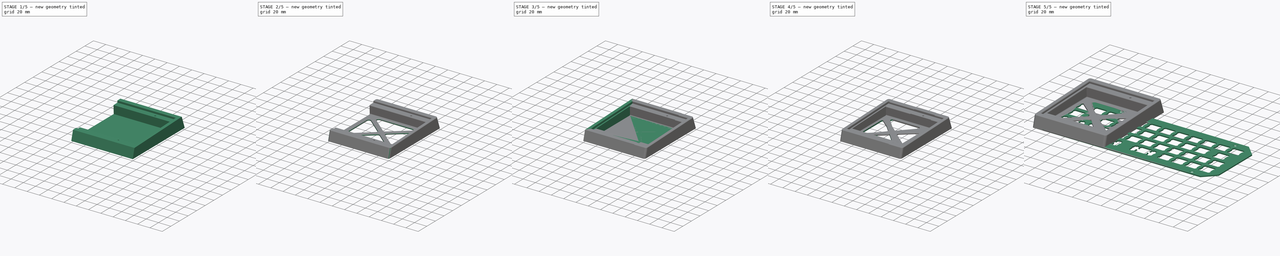
[diagram: build sequence overview — one tinted view per stage of 5, left to right]
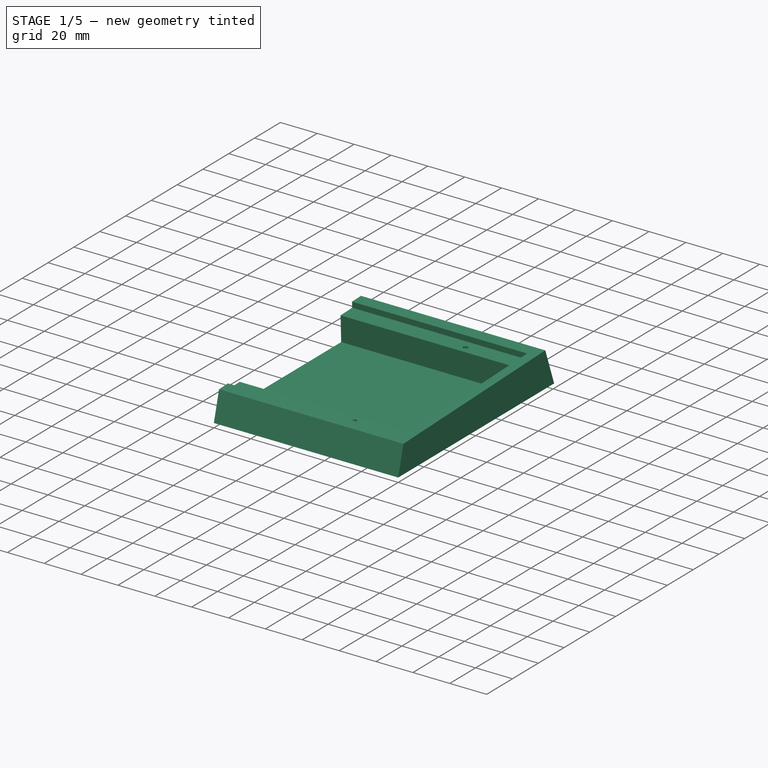
[diagram: stage 1 of 5 — iso view after this stage's code; geometry added in this stage tinted green]
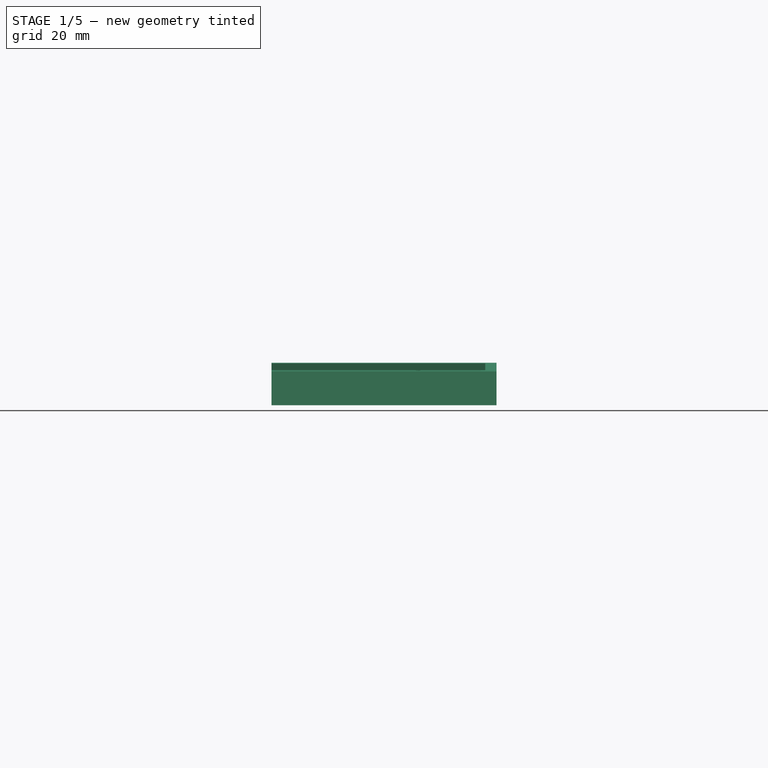
[diagram: stage 1 of 5 — front view after this stage's code; geometry added in this stage tinted green]
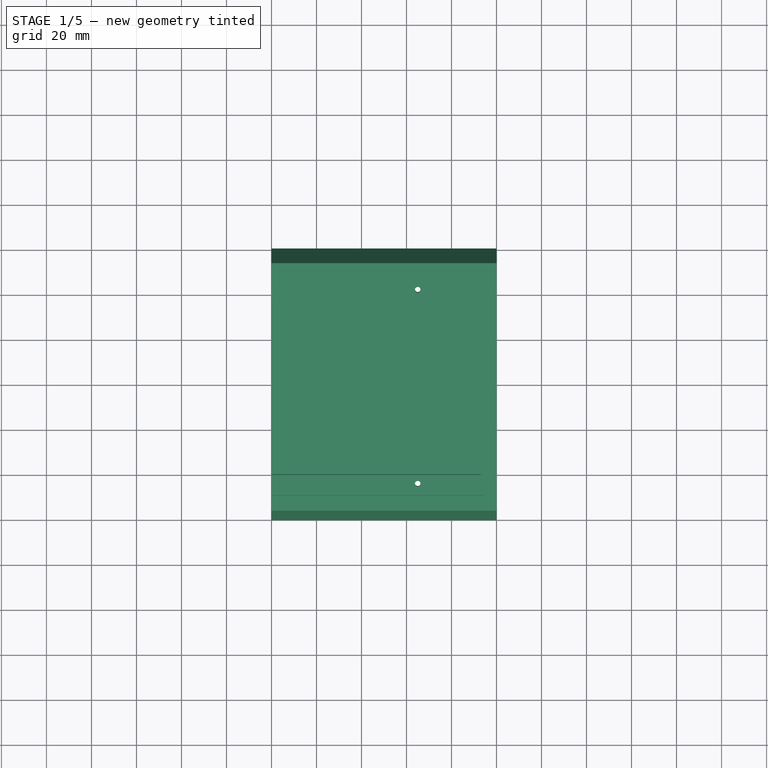
[diagram: stage 1 of 5 — top view after this stage's code; geometry added in this stage tinted green]
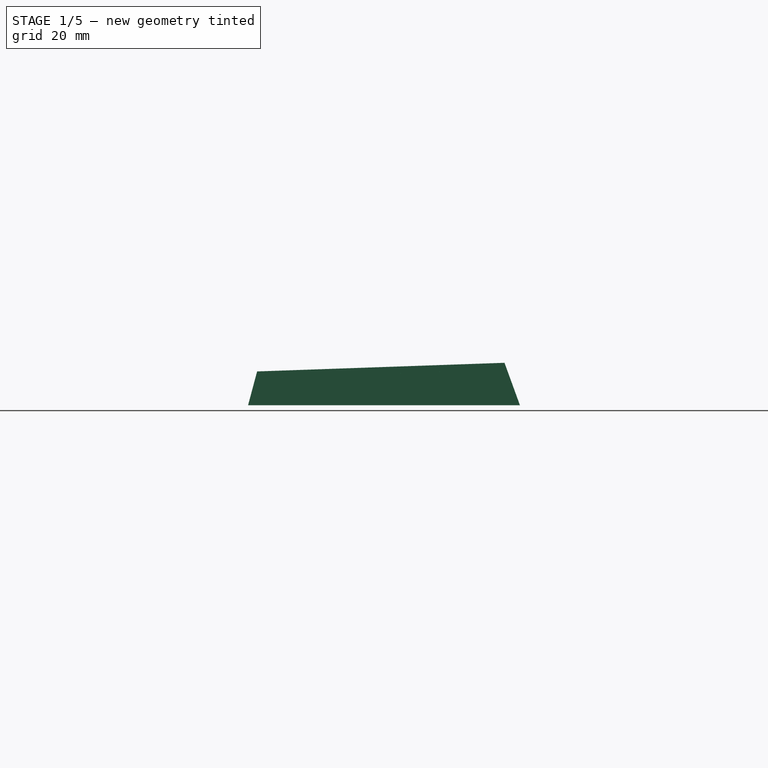
[diagram: stage 1 of 5 — right view after this stage's code; geometry added in this stage tinted green]
FCSTD DOCUMENT  (FreeCAD 0.20R)
Label: bm43
License: All rights reserved
LicenseURL: http://en.wikipedia.org/wiki/All_rights_reserved
objects: Sketcher::SketchObject×13, PartDesign::Pocket×7, PartDesign::Fillet×4, PartDesign::Pad×3, PartDesign::Hole×3, PartDesign::Body×3, PartDesign::Chamfer×1
note: 52 computed .brp shape members not serialized (recipe doc carries the construction recipe); baked Part::Feature solids carry a one-line shape summary decoded from their .brp

FEATURE [PartDesign::Body] Body001  label="Left"
  Group = -> [Sketch002,Pad001,Sketch003,Pocket,Sketch004,Pocket001,Sketch005,Hole001,Sketch006,Sketch007,Pocket002,Pocket003,Fillet,Fillet001]
  Origin = -> Origin001
  Tip = -> Fillet001
FEATURE [Sketcher::SketchObject] Sketch008
  FullyConstrained = true
  MapMode = 5
  Placement = pos=(0,0,0) rot=(0.57735,0.57735,0.57735;2.0944rad)
  sketch-geometry (4):
    g0: LineSegment StartX=0 StartY=0 StartZ=0 EndX=4.01924 EndY=15 EndZ=0
    g1: LineSegment StartX=4.01924 StartY=15 StartZ=0 EndX=113.952 EndY=18.8389 EndZ=0
    g2: LineSegment StartX=113.952 StartY=18.8389 StartZ=0 EndX=120.809 EndY=0 EndZ=0
    g3: LineSegment StartX=120.809 StartY=0 StartZ=0 EndX=0 EndY=0 EndZ=0
  constraints (11):
    c: Coincident(g-1,g0)
    c: Coincident(g0,g1)
    c: Coincident(g1,g2)
    c: PointOnObject(g2,g-1)
    c: Coincident(g2,g3)
    c: Coincident(g3,g0)
    c: Angle(g-1,g1) = 0.0349066
    c: DistanceY(g0,g0) = 15
    c: Angle(g3,g0) = 1.309
    c: Distance(g1) = 110
    c: Angle(g2,g3) = 1.22173
FEATURE [PartDesign::Pad] Pad002
  Direction = (1,-2e-16,3e-16)
  Length = 100
  Length2 = 10
  Placement = pos=(0,0,0) rot=(0.57735,0.57735,0.57735;2.0944rad)
  Profile = -> Sketch008
  ReferenceAxis = -> Sketch008 [N_Axis]
  Type = 0
FEATURE [Sketcher::SketchObject] Sketch009
  ExternalGeometry = -> [Pad002]
  FullyConstrained = true
  MapMode = 5
  Placement = pos=(-2.6e-15,-0.518278,14.8415) rot=(0.01745,0.01745,-0.999695;1.5711rad)
  Support = -> [Pad002]
  sketch-geometry (6):
    g0: LineSegment StartX=-107.64 StartY=95 StartZ=0 EndX=-11.4403 EndY=95 EndZ=0
    g1: LineSegment StartX=-107.64 StartY=95 StartZ=0 EndX=-114.54 EndY=95 EndZ=0
    g2: LineSegment StartX=-11.4403 StartY=95 StartZ=0 EndX=-4.54028 EndY=95 EndZ=0
    g3: LineSegment StartX=-107.64 StartY=95 StartZ=0 EndX=-107.64 EndY=0 EndZ=0
    g4: LineSegment StartX=-11.4403 StartY=95 StartZ=0 EndX=-11.4403 EndY=0 EndZ=0
    g5: LineSegment StartX=-11.4403 StartY=0 StartZ=0 EndX=-107.64 EndY=0 EndZ=0
  constraints (18):
    c: Horizontal(g0)
    c: DistanceX(g0,g0) = 96.2
    c: DistanceY(g0,g-3) = 5
    c: Coincident(g1,g0)
    c: PointOnObject(g1,g-4)
    c: Horizontal(g1)
    c: Coincident(g2,g0)
    c: PointOnObject(g2,g-3)
    c: Horizontal(g2)
    c: Equal(g2,g1)
    c: Coincident(g3,g0)
    c: PointOnObject(g3,g-1)
    c: Vertical(g3)
    c: Coincident(g4,g0)
    c: PointOnObject(g4,g-1)
    c: Vertical(g4)
    c: Coincident(g5,g4)
    c: Coincident(g5,g3)
FEATURE [PartDesign::Pocket] Pocket004
  BaseFeature = -> Pad002
  Direction = (2e-16,0.0348995,-0.999391)
  Length = 3
  Length2 = 5
  Placement = pos=(0,0,0) rot=(0.57735,0.57735,0.57735;2.0944rad)
  Profile = -> Sketch009
  ReferenceAxis = -> Sketch009 [N_Axis]
  Type = 0
FEATURE [Sketcher::SketchObject] Sketch010
  ExternalGeometry = -> [Pocket004]
  FullyConstrained = true
  MapMode = 5
  Placement = pos=(-2e-15,-0.41358,11.8434) rot=(0.01745,0.01745,-0.999695;1.5711rad)
  Support = -> [Pocket004]
  sketch-geometry (5):
    g0: LineSegment StartX=-98.6403 StartY=93 StartZ=0 EndX=-20.4403 EndY=93 EndZ=0
    g1: LineSegment StartX=-20.4403 StartY=93 StartZ=0 EndX=-20.4403 EndY=-1.42e-14 EndZ=0
    g2: LineSegment StartX=-20.4403 StartY=-1.42e-14 StartZ=0 EndX=-98.6403 EndY=-1.42e-14 EndZ=0
    g3: LineSegment StartX=-98.6403 StartY=-1.42e-14 StartZ=0 EndX=-98.6403 EndY=93 EndZ=0
    g4: LineSegment StartX=-11.4403 StartY=0 StartZ=0 EndX=-107.64 EndY=-1.42e-14 EndZ=0
  constraints (14):
    c: Coincident(g0,g1)
    c: Coincident(g1,g2)
    c: Coincident(g2,g3)
    c: Coincident(g3,g0)
    c: Horizontal(g0)
    c: Horizontal(g2)
    c: Vertical(g1)
    c: Vertical(g3)
    c: Coincident(g4,g-3)
    c: Coincident(g-4,g4)
    c: PointOnObject(g2,g4)
    c: DistanceY(g0,g-5) = 2
    c: DistanceX(g-5,g0) = 9
    c: DistanceX(g0,g-5) = 9
FEATURE [PartDesign::Pocket] Pocket005
  BaseFeature = -> Pocket004
  Direction = (2e-16,0.0348995,-0.999391)
  Length = 0
  Length2 = 5
  Offset = -2
  Placement = pos=(0,0,0) rot=(0.57735,0.57735,0.57735;2.0944rad)
  Profile = -> Sketch010
  ReferenceAxis = -> Sketch010 [N_Axis]
  Type = 3
  UpToFace = -> Pocket004 [Face2]
FEATURE [Sketcher::SketchObject] Sketch011
  ExternalGeometry = -> [Pocket005]
  FullyConstrained = true
  MapMode = 5
  Placement = pos=(-2e-15,-0.41358,11.8434) rot=(0.01745,0.01745,-0.999695;1.5711rad)
  Support = -> [Pocket005]
  sketch-geometry (2):
    g0: Circle CenterX=-102.64 CenterY=65 CenterZ=0 NormalX=0 NormalY=0 NormalZ=1 AngleXU=0 Radius=1.5
    g1: Circle CenterX=-16.4403 CenterY=65 CenterZ=0 NormalX=0 NormalY=0 NormalZ=1 AngleXU=0 Radius=1.5
  constraints (6):
    c: Horizontal(g1,g0)
    c: DistanceY(g0,g-3) = 30
    c: DistanceX(g-3,g0) = 5
    c: DistanceX(g1,g-4) = 5
    c: Equal(g0,g1)
    c: Diameter(g1) = 3
FEATURE [PartDesign::Hole] Hole002
  BaseFeature = -> Pocket005
  CustomThreadClearance = 0
  Depth = 25
  DepthType = 0
  Diameter = 2.5
  DrillForDepth = false
  DrillPoint = 1
  DrillPointAngle = 118
  HoleCutCountersinkAngle = 90
  HoleCutCustomValues = false
  HoleCutDepth = 0
  HoleCutDiameter = 6.1
  HoleCutType = 0
  ModelThread = false
  Placement = pos=(0,0,0) rot=(0.57735,0.57735,0.57735;2.0944rad)
  Profile = -> Sketch011
  Tapered = false
  TaperedAngle = 90
  ThreadClass = 0
  ThreadDepth = 25
  ThreadDepthType = 0
  ThreadDirection = 0
  ThreadFit = 0
  ThreadSize = 9
  ThreadType = 1
  Threaded = true
  UseCustomThreadClearance = false
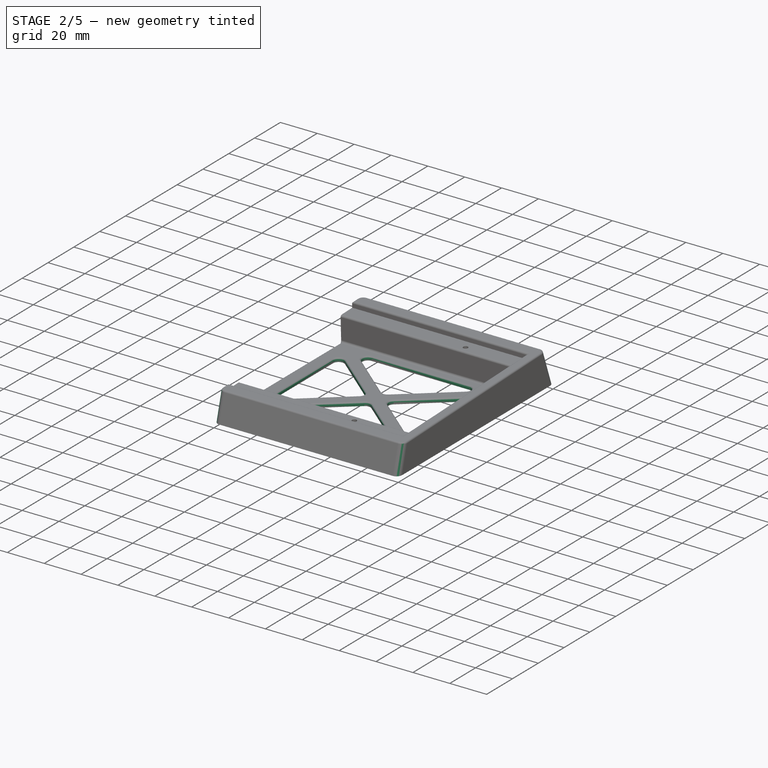
[diagram: stage 2 of 5 — iso view after this stage's code; geometry added in this stage tinted green]
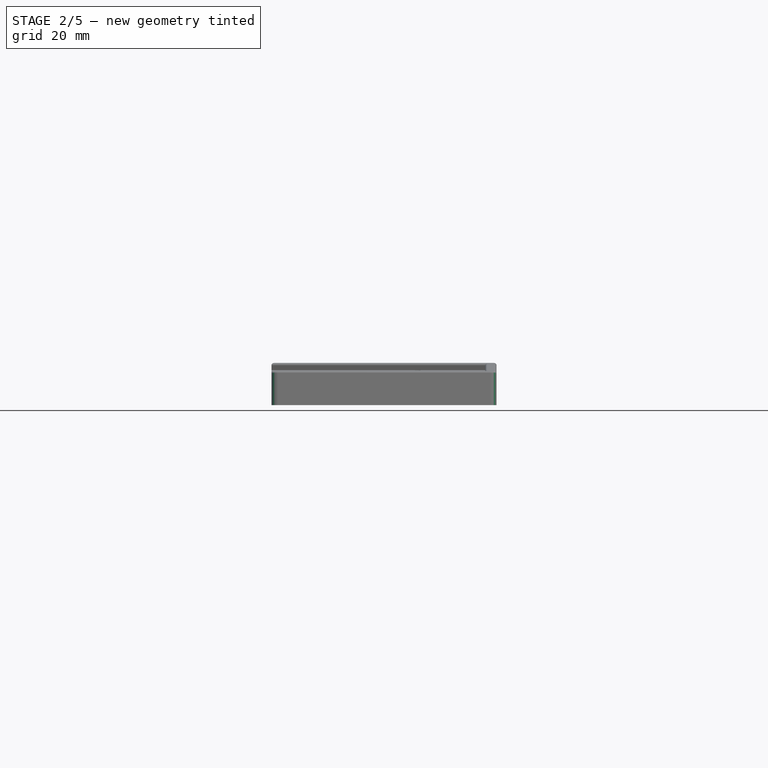
[diagram: stage 2 of 5 — front view after this stage's code; geometry added in this stage tinted green]
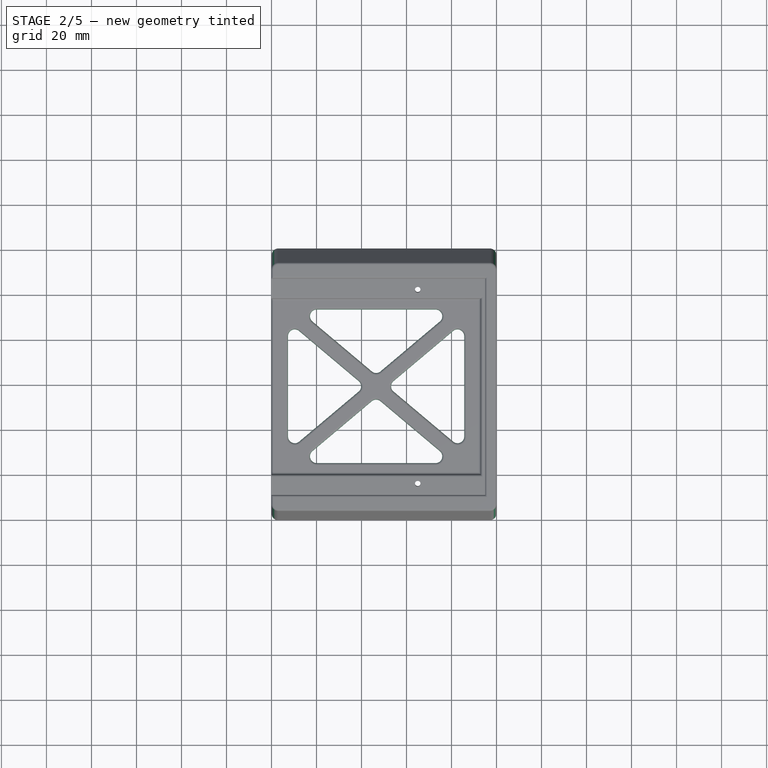
[diagram: stage 2 of 5 — top view after this stage's code; geometry added in this stage tinted green]
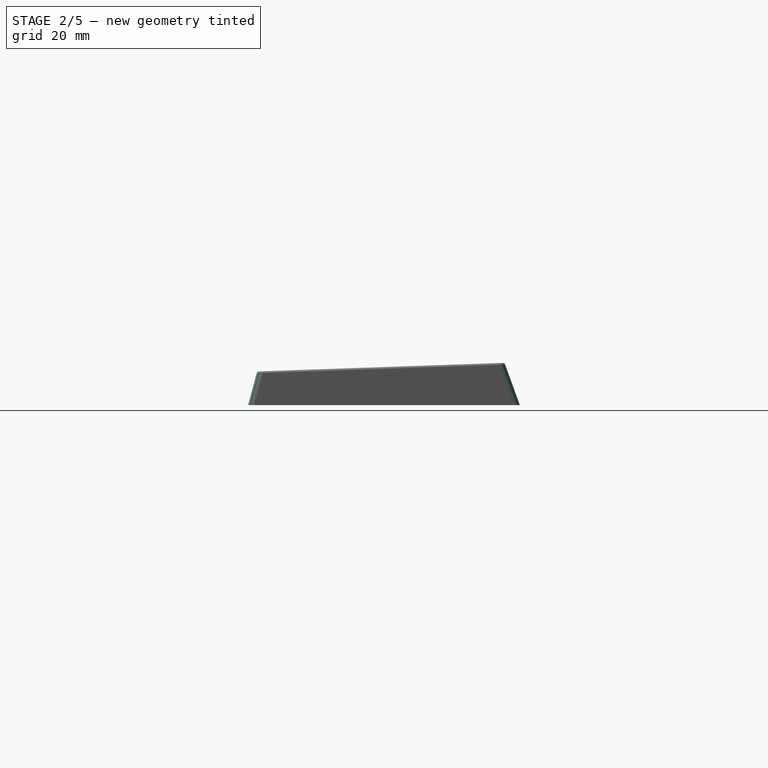
[diagram: stage 2 of 5 — right view after this stage's code; geometry added in this stage tinted green]
FEATURE [Sketcher::SketchObject] Sketch012
  ExternalGeometry = -> [Hole002]
  FullyConstrained = true
  MapMode = 5
  Placement = pos=(-3e-16,-2e-16,1.99878) rot=(0,0,-1;1.5708rad)
  Support = -> [Hole002]
  sketch-geometry (19):
    g0: LineSegment StartX=-98.6306 StartY=-1.5e-14 StartZ=0 EndX=-20.3829 EndY=93 EndZ=0
    g1: LineSegment StartX=-20.3829 StartY=-1.42e-14 StartZ=0 EndX=-98.6306 EndY=93 EndZ=0
    g2: GeomPoint X=-59.5068 Y=46.5 Z=0
    g3: LineSegment StartX=-93.6306 StartY=11.8853 StartZ=0 EndX=-64.5068 EndY=46.5 EndZ=0
    g4: LineSegment StartX=-64.5068 StartY=46.5 StartZ=0 EndX=-93.6306 EndY=81.1147 EndZ=0
    g5: LineSegment StartX=-93.6306 StartY=81.1147 StartZ=0 EndX=-93.6306 EndY=11.8853 EndZ=0
    g6: LineSegment StartX=-88.2399 StartY=7.34973 StartZ=0 EndX=-59.5068 EndY=41.5 EndZ=0
    g7: LineSegment StartX=-59.5068 StartY=41.5 StartZ=0 EndX=-30.7737 EndY=7.34973 EndZ=0
    g8: LineSegment StartX=-30.7737 StartY=7.34973 StartZ=0 EndX=-88.2399 EndY=7.34973 EndZ=0
    g9: LineSegment StartX=-88.2399 StartY=85.6503 StartZ=0 EndX=-59.5068 EndY=51.5 EndZ=0
    g10: LineSegment StartX=-59.5068 StartY=51.5 StartZ=0 EndX=-30.7737 EndY=85.6503 EndZ=0
    g11: LineSegment StartX=-30.7737 StartY=85.6503 StartZ=0 EndX=-88.2399 EndY=85.6503 EndZ=0
    g12: LineSegment StartX=-54.5068 StartY=46.5 StartZ=0 EndX=-25.3829 EndY=11.8853 EndZ=0
    g13: LineSegment StartX=-25.3829 StartY=11.8853 StartZ=0 EndX=-25.3829 EndY=81.1147 EndZ=0
    g14: LineSegment StartX=-25.3829 StartY=81.1147 StartZ=0 EndX=-54.5068 EndY=46.5 EndZ=0
    g15: LineSegment StartX=-25.3829 StartY=81.1147 StartZ=0 EndX=-30.7737 EndY=85.6503 EndZ=0
    g16: LineSegment StartX=-88.2399 StartY=85.6503 StartZ=0 EndX=-93.6306 EndY=81.1147 EndZ=0
    g17: LineSegment StartX=-93.6306 StartY=11.8853 StartZ=0 EndX=-88.2399 EndY=7.34973 EndZ=0
    g18: LineSegment StartX=-30.7737 StartY=7.34973 StartZ=0 EndX=-25.3829 EndY=11.8853 EndZ=0
  constraints (48):
    c: Coincident(g0,g-3)
    c: Coincident(g0,g-4)
    c: Coincident(g1,g-4)
    c: Coincident(g1,g-3)
    c: PointOnObject(g2,g1)
    c: PointOnObject(g2,g0)
    c: Coincident(g3,g4)
    c: Coincident(g4,g5)
    c: Coincident(g5,g3)
    c: Vertical(g5)
    c: Coincident(g6,g7)
    c: Coincident(g7,g8)
    c: Coincident(g8,g6)
    c: Horizontal(g8)
    c: Coincident(g9,g10)
    c: Coincident(g10,g11)
    c: Coincident(g11,g9)
    c: Horizontal(g11)
    c: Coincident(g12,g13)
    c: Vertical(g13)
    c: Coincident(g13,g14)
    c: Coincident(g14,g12)
    c: Coincident(g15,g13)
    c: Coincident(g15,g10)
    c: Coincident(g16,g9)
    c: Coincident(g16,g4)
    c: Coincident(g17,g3)
    c: Coincident(g17,g6)
    c: Coincident(g18,g7)
    c: Coincident(g18,g12)
    c: Perpendicular(g18,g1)
    c: Perpendicular(g0,g17)
    c: Perpendicular(g1,g16)
    c: Perpendicular(g0,g15)
    c: Symmetric(g3,g12,g2)
    c: Symmetric(g6,g9,g2)
    c: Horizontal(g3,g12)
    c: Vertical(g9,g6)
    c: DistanceX(g3,g12) = 10
    c: DistanceY(g6,g9) = 10
    c: Parallel(g12,g1)
    c: Parallel(g1,g7)
    c: Parallel(g3,g0)
    c: Parallel(g0,g6)
    c: Parallel(g4,g1)
    c: Parallel(g1,g9)
    c: Parallel(g10,g0)
    c: DistanceX(g0,g3) = 5
FEATURE [PartDesign::Pocket] Pocket006
  BaseFeature = -> Hole002
  Direction = (2e-16,1e-16,-1)
  Length = 5
  Length2 = 5
  Placement = pos=(0,0,0) rot=(0.57735,0.57735,0.57735;2.0944rad)
  Profile = -> Sketch012
  ReferenceAxis = -> Sketch012 [N_Axis]
  Type = 1
FEATURE [PartDesign::Fillet] Fillet002
  Base = -> Pocket006 [Edge3,Edge4,Edge37,Edge36,Edge64,Edge42,Edge54,Edge62,Edge41,Edge47,Edge48,Edge44,Edge56,Edge50,Edge53,Edge61]
  BaseFeature = -> Pocket006
  Placement = pos=(0,0,0) rot=(0.57735,0.57735,0.57735;2.0944rad)
  Radius = 3
  SupportTransform = false
  UseAllEdges = false
FEATURE [PartDesign::Fillet] Fillet003
  Base = -> Fillet002 [Face5,Face42,Edge119,Edge120,Edge121]
  BaseFeature = -> Fillet002
  Placement = pos=(0,0,0) rot=(0.57735,0.57735,0.57735;2.0944rad)
  Radius = 1
  SupportTransform = false
  UseAllEdges = false
FEATURE [PartDesign::Body] Body002  label="Right"
  Group = -> [Sketch008,Pad002,Sketch009,Pocket004,Sketch010,Pocket005,Sketch011,Hole002,Sketch012,Pocket006,Fillet002,Fillet003]
  Origin = -> Origin002
  Placement = pos=(158.5,0,0) rot=(0,0,1;0rad)
  Tip = -> Fillet003
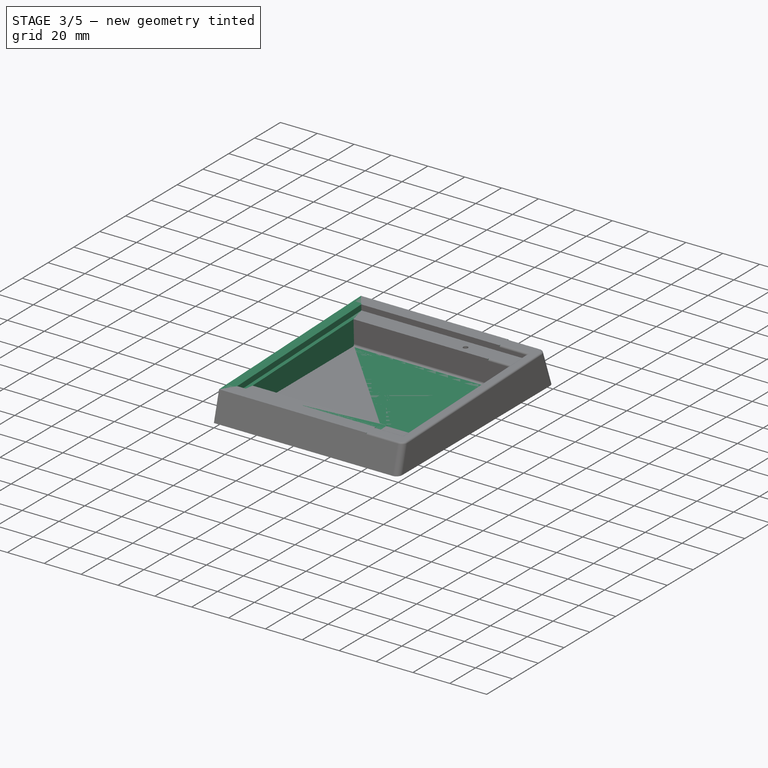
[diagram: stage 3 of 5 — iso view after this stage's code; geometry added in this stage tinted green]
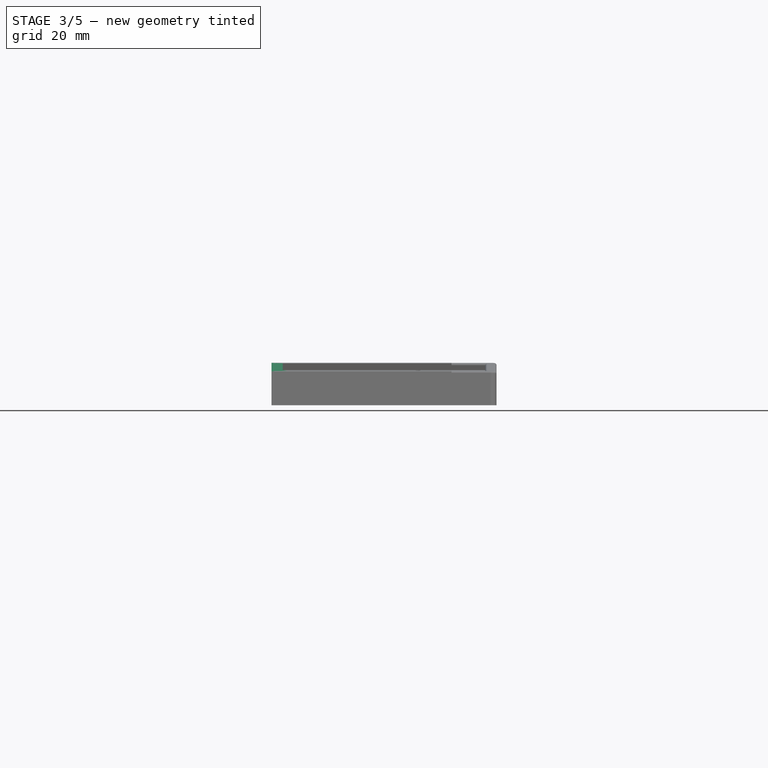
[diagram: stage 3 of 5 — front view after this stage's code; geometry added in this stage tinted green]
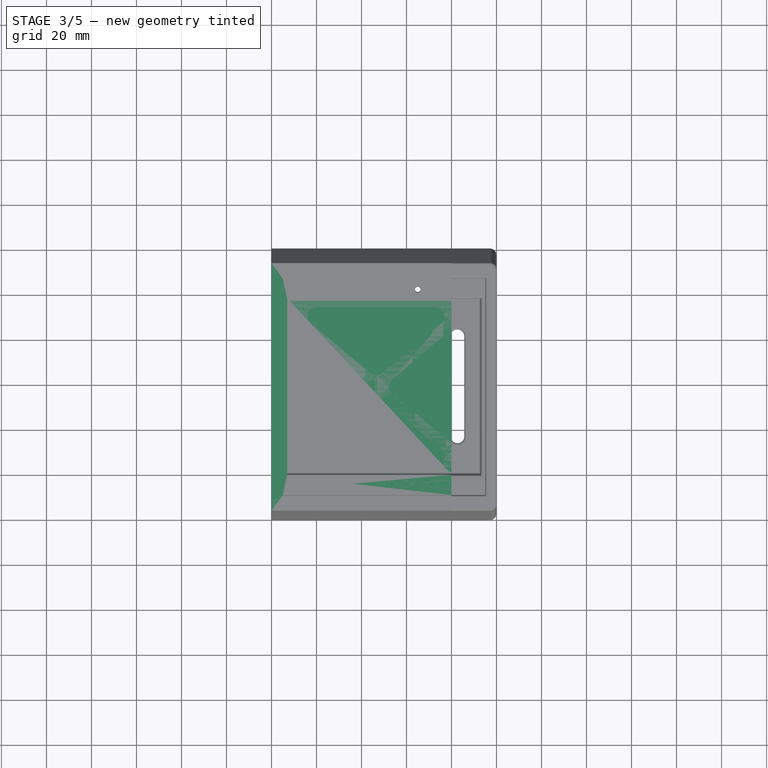
[diagram: stage 3 of 5 — top view after this stage's code; geometry added in this stage tinted green]
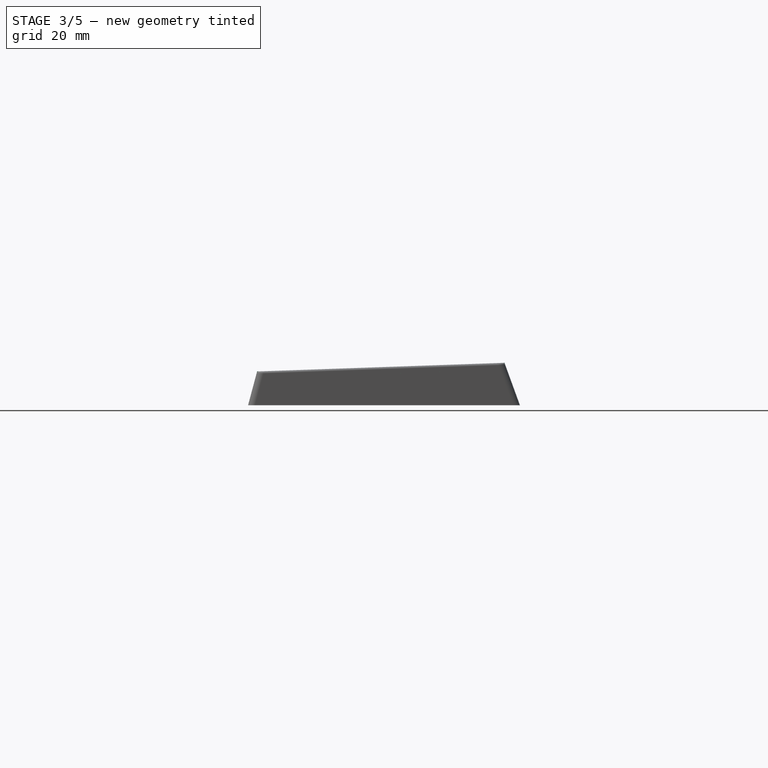
[diagram: stage 3 of 5 — right view after this stage's code; geometry added in this stage tinted green]
FEATURE [Sketcher::SketchObject] Sketch002
  FullyConstrained = true
  MapMode = 5
  Placement = pos=(0,0,0) rot=(0.57735,0.57735,0.57735;2.0944rad)
  Support = -> [YZ_Plane001]
  sketch-geometry (4):
    g0: LineSegment StartX=0 StartY=0 StartZ=0 EndX=4.01924 EndY=15 EndZ=0
    g1: LineSegment StartX=4.01924 StartY=15 StartZ=0 EndX=113.952 EndY=18.8389 EndZ=0
    g2: LineSegment StartX=113.952 StartY=18.8389 StartZ=0 EndX=120.809 EndY=0 EndZ=0
    g3: LineSegment StartX=120.809 StartY=0 StartZ=0 EndX=0 EndY=0 EndZ=0
  constraints (11):
    c: Coincident(g-1,g0)
    c: Coincident(g0,g1)
    c: Coincident(g1,g2)
    c: PointOnObject(g2,g-1)
    c: Coincident(g2,g3)
    c: Coincident(g3,g0)
    c: Angle(g-1,g1) = 0.0349066
    c: DistanceY(g0,g0) = 15
    c: Angle(g3,g0) = 1.309
    c: Distance(g1) = 110
    c: Angle(g2,g3) = 1.22173
FEATURE [PartDesign::Pad] Pad001
  Direction = (1,-2e-16,3e-16)
  Length = 80
  Length2 = 10
  Placement = pos=(0,0,0) rot=(0.57735,0.57735,0.57735;2.0944rad)
  Profile = -> Sketch002
  ReferenceAxis = -> Sketch002 [N_Axis]
  Type = 0
FEATURE [Sketcher::SketchObject] Sketch003
  ExternalGeometry = -> [Pad001]
  FullyConstrained = true
  MapMode = 5
  Placement = pos=(-4.3e-15,-0.518278,14.8415) rot=(0.01745,0.01745,-0.999695;1.5711rad)
  Support = -> [Pad001]
  sketch-geometry (6):
    g0: LineSegment StartX=-11.4403 StartY=5 StartZ=0 EndX=-107.64 EndY=5 EndZ=0
    g1: LineSegment StartX=-11.4403 StartY=5 StartZ=0 EndX=-4.54028 EndY=5 EndZ=0
    g2: LineSegment StartX=-107.64 StartY=5 StartZ=0 EndX=-114.54 EndY=5 EndZ=0
    g3: LineSegment StartX=-107.64 StartY=5 StartZ=0 EndX=-107.64 EndY=80 EndZ=0
    g4: LineSegment StartX=-11.4403 StartY=5 StartZ=0 EndX=-11.4403 EndY=80 EndZ=0
    g5: LineSegment StartX=-107.64 StartY=80 StartZ=0 EndX=-11.4403 EndY=80 EndZ=0
  constraints (18):
    c: Horizontal(g0)
    c: Distance(g0) = 96.2
    c: DistanceY(g-3,g0) = 5
    c: Coincident(g1,g0)
    c: PointOnObject(g1,g-3)
    c: Horizontal(g1)
    c: Coincident(g2,g0)
    c: PointOnObject(g2,g-4)
    c: Horizontal(g2)
    c: Equal(g2,g1)
    c: PointOnObject(g3,g-5)
    c: Vertical(g3)
    c: Coincident(g4,g0)
    c: PointOnObject(g4,g-5)
    c: Vertical(g4)
    c: Coincident(g3,g0)
    c: Coincident(g5,g3)
    c: Coincident(g5,g4)
FEATURE [PartDesign::Pocket] Pocket
  BaseFeature = -> Pad001
  Direction = (3e-16,0.0348995,-0.999391)
  Length = 3
  Length2 = 5
  Placement = pos=(0,0,0) rot=(0.57735,0.57735,0.57735;2.0944rad)
  Profile = -> Sketch003
  ReferenceAxis = -> Sketch003 [N_Axis]
  Type = 0
FEATURE [Sketcher::SketchObject] Sketch004
  ExternalGeometry = -> [Pocket]
  FullyConstrained = true
  MapMode = 5
  Placement = pos=(-3.3e-15,-0.41358,11.8434) rot=(0.01745,0.01745,-0.999695;1.5711rad)
  Support = -> [Pocket]
  sketch-geometry (4):
    g0: LineSegment StartX=-98.6403 StartY=7 StartZ=0 EndX=-20.4403 EndY=7 EndZ=0
    g1: LineSegment StartX=-20.4403 StartY=7 StartZ=0 EndX=-20.4403 EndY=80 EndZ=0
    g2: LineSegment StartX=-20.4403 StartY=80 StartZ=0 EndX=-98.6403 EndY=80 EndZ=0
    g3: LineSegment StartX=-98.6403 StartY=80 StartZ=0 EndX=-98.6403 EndY=7 EndZ=0
  constraints (12):
    c: Coincident(g0,g1)
    c: Coincident(g1,g2)
    c: Coincident(g2,g3)
    c: Coincident(g3,g0)
    c: Horizontal(g0)
    c: Horizontal(g2)
    c: Vertical(g1)
    c: Vertical(g3)
    c: DistanceX(g-4,g0) = 9
    c: DistanceY(g-4,g0) = 2
    c: DistanceX(g0,g-5) = 9
    c: PointOnObject(g1,g-6)
FEATURE [PartDesign::Pocket] Pocket001
  BaseFeature = -> Pocket
  Direction = (3e-16,0.0348995,-0.999391)
  Length = 0
  Length2 = 5
  Offset = -2
  Placement = pos=(0,0,0) rot=(0.57735,0.57735,0.57735;2.0944rad)
  Profile = -> Sketch004
  ReferenceAxis = -> Sketch004 [N_Axis]
  Type = 3
  UpToFace = -> Pocket [Face2]
FEATURE [Sketcher::SketchObject] Sketch005
  ExternalGeometry = -> [Pocket001]
  FullyConstrained = true
  MapMode = 5
  Placement = pos=(-3.4e-15,-0.41358,11.8434) rot=(0.01745,0.01745,-0.999695;1.5711rad)
  Support = -> [Pocket001]
  sketch-geometry (2):
    g0: Circle CenterX=-102.64 CenterY=65 CenterZ=0 NormalX=0 NormalY=0 NormalZ=1 AngleXU=0 Radius=1
    g1: Circle CenterX=-16.4403 CenterY=35 CenterZ=0 NormalX=0 NormalY=0 NormalZ=1 AngleXU=0 Radius=1
  constraints (6):
    c: Diameter(g0) = 2
    c: DistanceY(g-4,g0) = 60
    c: DistanceX(g-4,g0) = 5
    c: Diameter(g1) = 2
    c: DistanceX(g1,g-5) = 5
    c: DistanceY(g-5,g1) = 30
FEATURE [PartDesign::Hole] Hole001
  BaseFeature = -> Pocket001
  CustomThreadClearance = 0
  Depth = 295.153
  DepthType = 1
  Diameter = 2.5
  DrillForDepth = false
  DrillPoint = 1
  DrillPointAngle = 118
  HoleCutCountersinkAngle = 90
  HoleCutCustomValues = false
  HoleCutDepth = 0
  HoleCutDiameter = 6.3
  HoleCutType = 0
  ModelThread = false
  Placement = pos=(0,0,0) rot=(0.57735,0.57735,0.57735;2.0944rad)
  Profile = -> Sketch005
  Tapered = false
  TaperedAngle = 90
  ThreadClass = 0
  ThreadDepth = 295.153
  ThreadDepthType = 0
  ThreadDirection = 0
  ThreadFit = 0
  ThreadSize = 9
  ThreadType = 1
  Threaded = true
  UseCustomThreadClearance = false
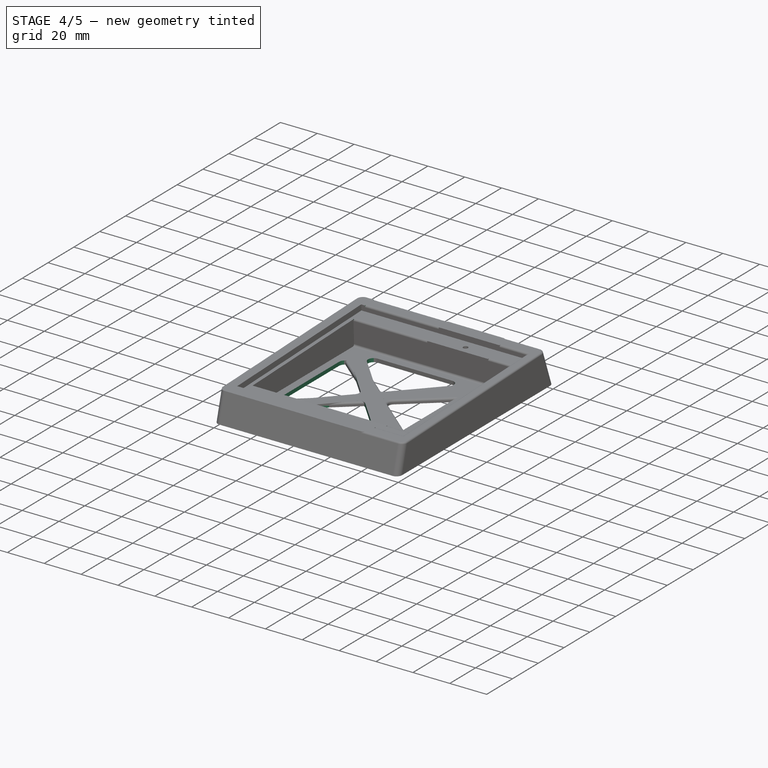
[diagram: stage 4 of 5 — iso view after this stage's code; geometry added in this stage tinted green]
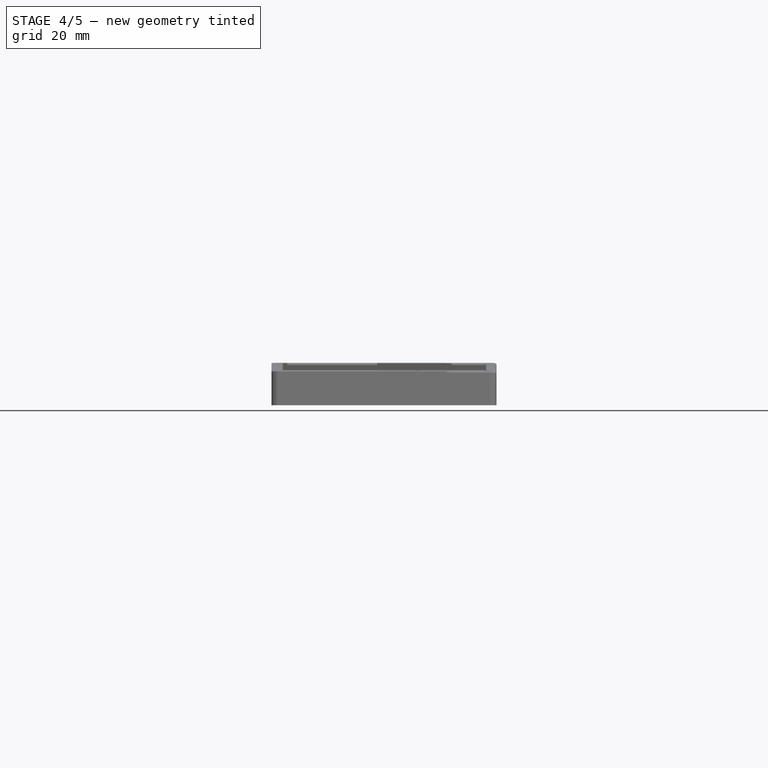
[diagram: stage 4 of 5 — front view after this stage's code; geometry added in this stage tinted green]
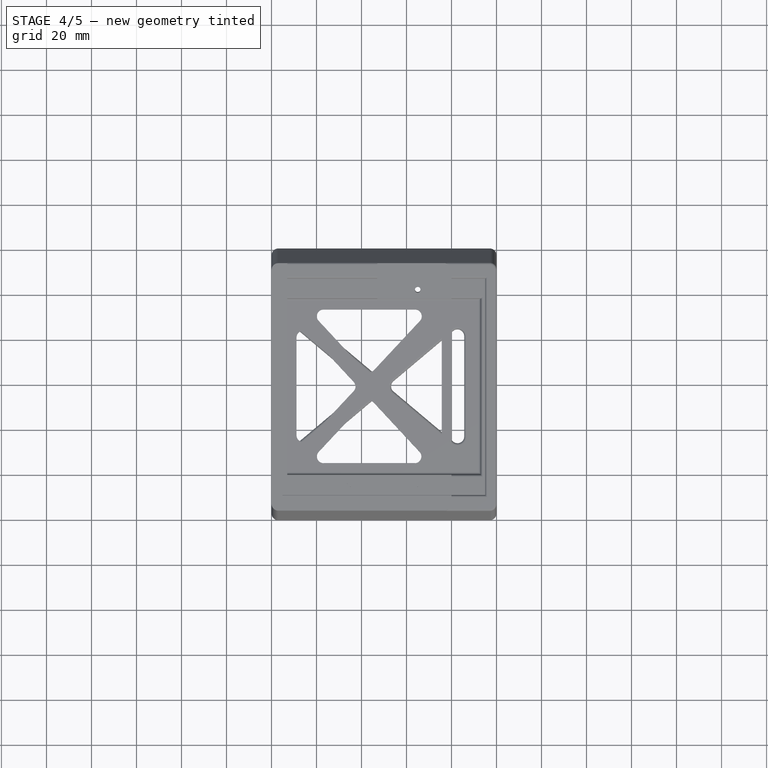
[diagram: stage 4 of 5 — top view after this stage's code; geometry added in this stage tinted green]
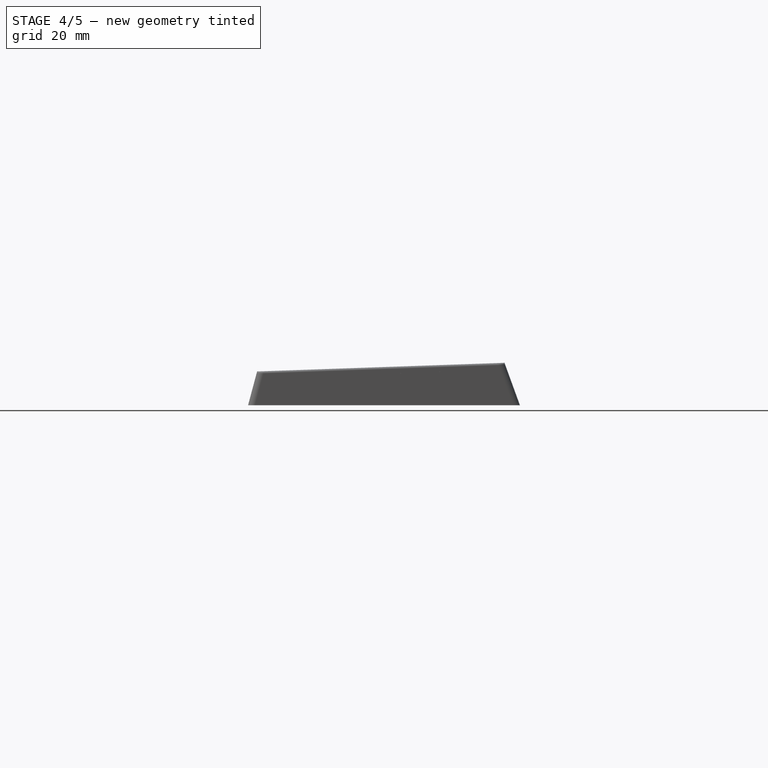
[diagram: stage 4 of 5 — right view after this stage's code; geometry added in this stage tinted green]
FEATURE [PartDesign::Body] Body  label="Plate"
  Group = -> [Sketch,Pad,Sketch001,Hole,Chamfer]
  Origin = -> Origin
  Placement = pos=(5.006,11.0198,12.2427) rot=(1,0,0;0.034907rad)
  Tip = -> Chamfer
FEATURE [PartDesign::Pocket] Pocket002
  BaseFeature = -> Hole001
  Direction = (3e-16,-8e-16,-1)
  Length = 5
  Length2 = 5
  Placement = pos=(0,0,0) rot=(0.57735,0.57735,0.57735;2.0944rad)
  Profile = -> Sketch006
  ReferenceAxis = -> Sketch006 [N_Axis]
  Type = 1
FEATURE [Sketcher::SketchObject] Sketch007
  ExternalGeometry = -> [Pocket002]
  FullyConstrained = true
  MapMode = 5
  Placement = pos=(-4.5e-15,-0.518278,14.8415) rot=(0.01745,0.01745,-0.999695;1.5711rad)
  sketch-geometry (4):
    g0: LineSegment StartX=-98.6403 StartY=7 StartZ=0 EndX=-120.735 EndY=7 EndZ=0
    g1: LineSegment StartX=-120.735 StartY=7 StartZ=0 EndX=-120.735 EndY=47 EndZ=0
    g2: LineSegment StartX=-120.735 StartY=47 StartZ=0 EndX=-98.6403 EndY=47 EndZ=0
    g3: LineSegment StartX=-98.6403 StartY=47 StartZ=0 EndX=-98.6403 EndY=7 EndZ=0
  constraints (11):
    c: Coincident(g0,g1)
    c: Coincident(g1,g2)
    c: Coincident(g2,g3)
    c: Coincident(g3,g0)
    c: Horizontal(g0)
    c: Horizontal(g2)
    c: Vertical(g1)
    c: Vertical(g3)
    c: DistanceY(g0,g1) = 40
    c: PointOnObject(g0,g-4)
    c: Coincident(g0,g-3)
FEATURE [PartDesign::Pocket] Pocket003
  BaseFeature = -> Pocket002
  Direction = (3e-16,0.0348995,-0.999391)
  Length = 0
  Length2 = 5
  Placement = pos=(0,0,0) rot=(0.57735,0.57735,0.57735;2.0944rad)
  Profile = -> Sketch007
  ReferenceAxis = -> Sketch007 [N_Axis]
  Type = 3
  UpToFace = -> Pocket002 [Face26]
FEATURE [PartDesign::Fillet] Fillet
  Base = -> Pocket003 [Edge69,Edge67,Edge46,Edge59,Edge55,Edge61,Edge66,Edge47,Edge58,Edge52,Edge53,Edge49,Edge4,Edge3,Edge29,Edge38]
  BaseFeature = -> Pocket003
  Placement = pos=(0,0,0) rot=(0.57735,0.57735,0.57735;2.0944rad)
  Radius = 3
  SupportTransform = false
  UseAllEdges = false
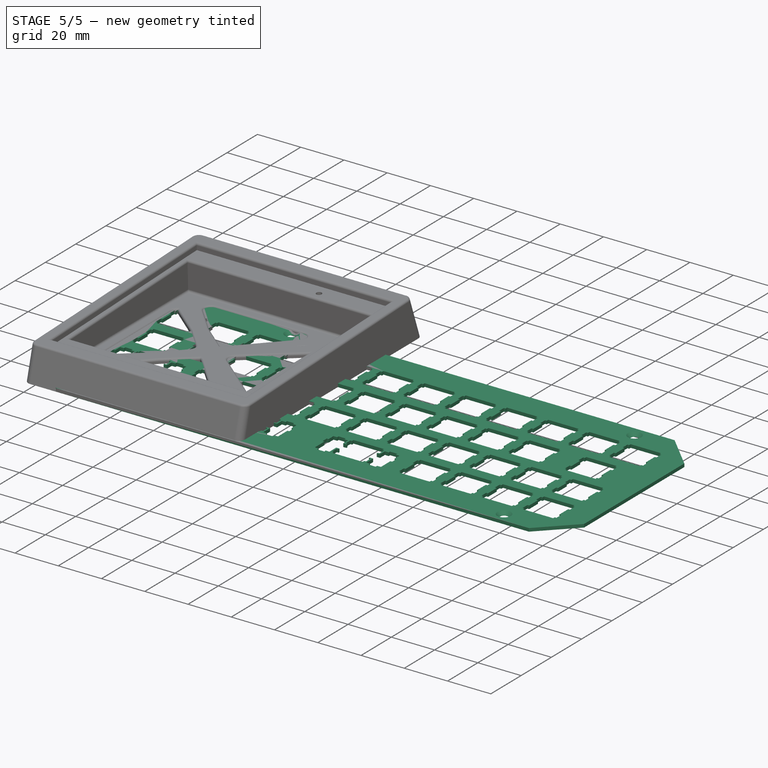
[diagram: stage 5 of 5 — iso view after this stage's code; geometry added in this stage tinted green]
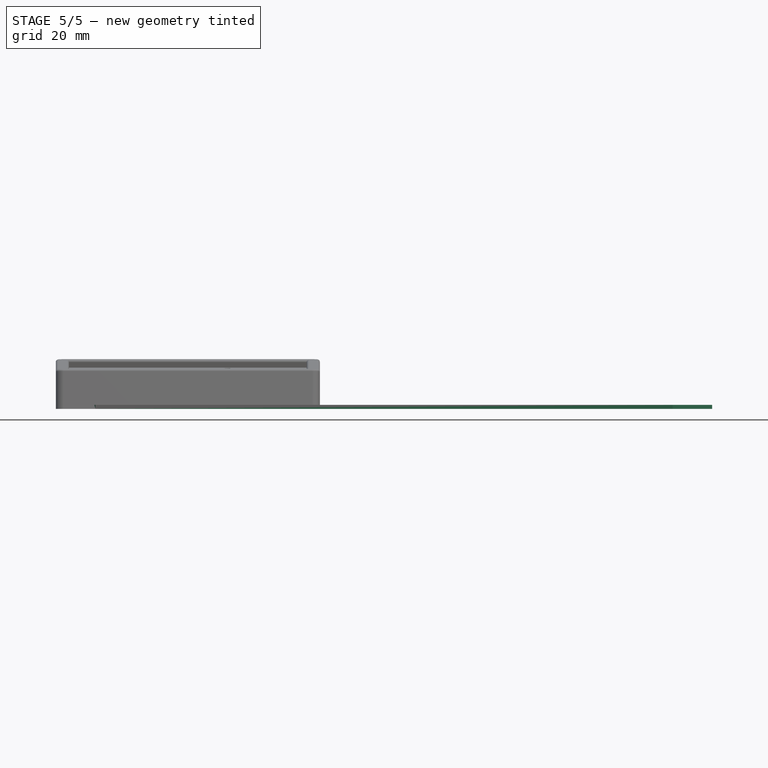
[diagram: stage 5 of 5 — front view after this stage's code; geometry added in this stage tinted green]
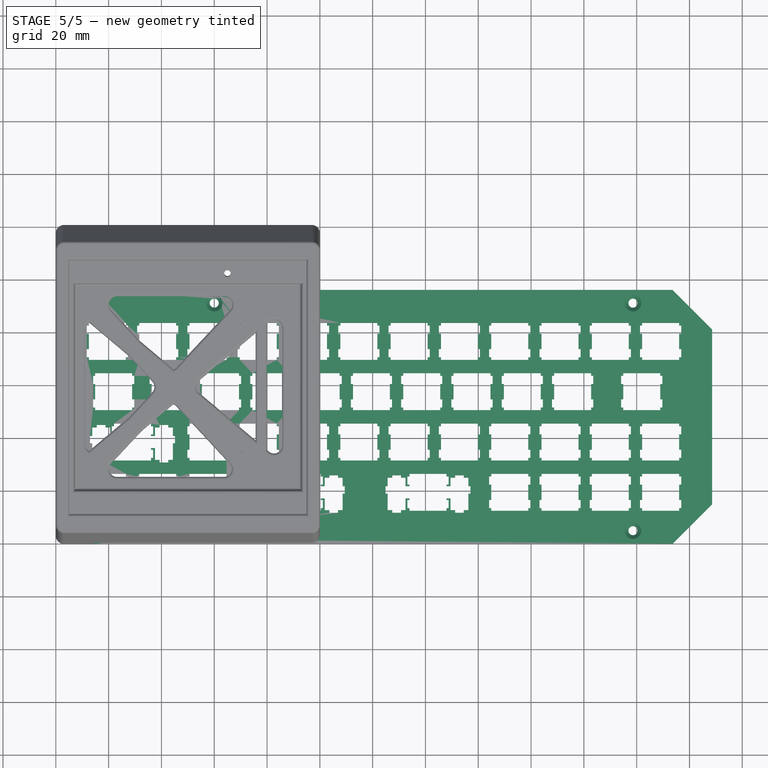
[diagram: stage 5 of 5 — top view after this stage's code; geometry added in this stage tinted green]
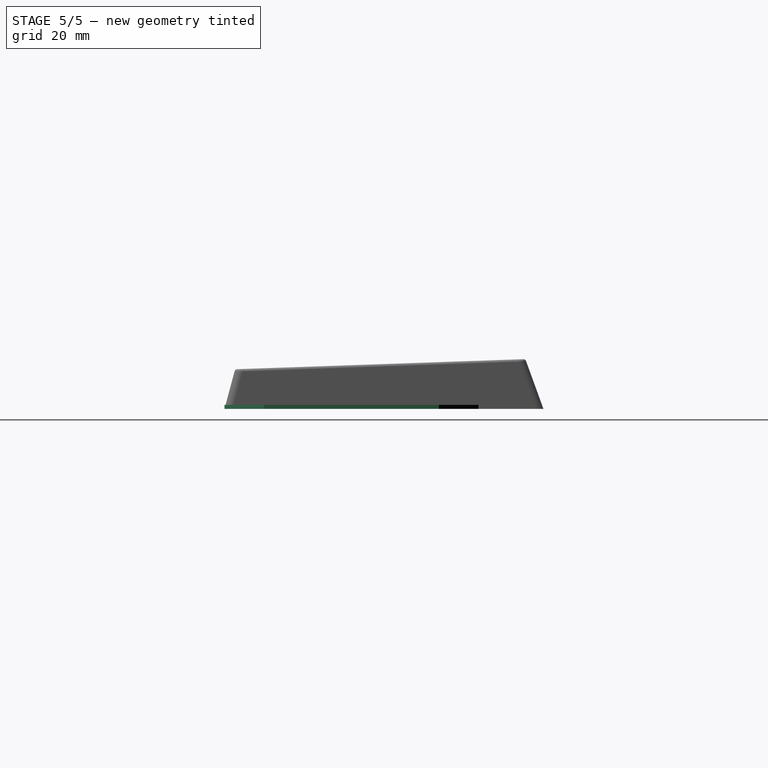
[diagram: stage 5 of 5 — right view after this stage's code; geometry added in this stage tinted green]
FEATURE [Sketcher::SketchObject] Sketch
  FullyConstrained = false
  Placement = pos=(0,0,0) rot=(0,0,1;3.14159rad)
  sketch-geometry (984):
    g0: LineSegment StartX=-86.342 StartY=-26.5254 StartZ=0 EndX=-86.342 EndY=-25.525 EndZ=0
    g1: LineSegment StartX=-86.342 StartY=-25.525 StartZ=0 EndX=-85.5426 EndY=-25.525 EndZ=0
    g2: LineSegment StartX=-85.5426 StartY=-25.525 StartZ=0 EndX=-85.5426 EndY=-22.4271 EndZ=0
    g3: LineSegment StartX=-85.5426 StartY=-22.4271 StartZ=0 EndX=-86.342 EndY=-22.4271 EndZ=0
    g4: LineSegment StartX=-86.342 StartY=-22.4271 StartZ=0 EndX=-86.342 EndY=-21.8249 EndZ=0
    g5: LineSegment StartX=-86.342 StartY=-21.8249 StartZ=0 EndX=-84.818 EndY=-21.8249 EndZ=0
    g6: LineSegment StartX=-84.818 StartY=-21.8249 StartZ=0 EndX=-84.818 EndY=-25.0551 EndZ=0
    g7: LineSegment StartX=-84.818 StartY=-25.0551 StartZ=0 EndX=-83.0925 EndY=-25.0551 EndZ=0
    g8: LineSegment StartX=-83.0925 StartY=-25.0551 StartZ=0 EndX=-83.0925 EndY=-25.977 EndZ=0
    g9: LineSegment StartX=-83.0925 StartY=-25.977 StartZ=0 EndX=-79.7919 EndY=-25.977 EndZ=0
    g10: LineSegment StartX=-79.7919 StartY=-25.977 StartZ=0 EndX=-79.7919 EndY=-25.0551 EndZ=0
    g11: LineSegment StartX=-79.7919 StartY=-25.0551 StartZ=0 EndX=-78.0669 EndY=-25.0551 EndZ=0
    g12: LineSegment StartX=-78.0669 StartY=-25.0551 StartZ=0 EndX=-78.0669 EndY=-21.8249 EndZ=0
    g13: LineSegment StartX=-78.0669 StartY=-21.8249 StartZ=0 EndX=-77.2428 EndY=-21.8249 EndZ=0
    g14: LineSegment StartX=-77.2428 StartY=-21.8249 StartZ=0 EndX=-77.2428 EndY=-19.0261 EndZ=0
    g15: LineSegment StartX=-77.2428 StartY=-19.0261 StartZ=0 EndX=-78.0669 EndY=-19.0261 EndZ=0
    g16: LineSegment StartX=-78.0669 StartY=-19.0261 StartZ=0 EndX=-78.0669 EndY=-12.7561 EndZ=0
    g17: LineSegment StartX=-78.0669 StartY=-12.7561 StartZ=0 EndX=-79.7919 EndY=-12.7561 EndZ=0
    g18: LineSegment StartX=-79.7919 StartY=-12.7561 StartZ=0 EndX=-79.7919 EndY=-11.7749 EndZ=0
    g19: LineSegment StartX=-79.7919 StartY=-11.7749 StartZ=0 EndX=-83.0925 EndY=-11.7749 EndZ=0
    g20: LineSegment StartX=-83.0925 StartY=-11.7749 StartZ=0 EndX=-83.0925 EndY=-12.7561 EndZ=0
    g21: LineSegment StartX=-83.0925 StartY=-12.7561 StartZ=0 EndX=-84.818 EndY=-12.7561 EndZ=0
    g22: LineSegment StartX=-84.818 StartY=-12.7561 StartZ=0 EndX=-84.818 EndY=-17.225 EndZ=0
    g23: LineSegment StartX=-84.818 StartY=-17.225 StartZ=0 EndX=-86.342 EndY=-17.225 EndZ=0
    g24: LineSegment StartX=-86.342 StartY=-17.225 StartZ=0 EndX=-86.342 EndY=-16.6256 EndZ=0
    g25: LineSegment StartX=-86.342 StartY=-16.6256 StartZ=0 EndX=-85.5426 EndY=-16.6256 EndZ=0
    g26: LineSegment StartX=-85.5426 StartY=-16.6256 StartZ=0 EndX=-85.5426 EndY=-13.525 EndZ=0
    g27: LineSegment StartX=-85.5426 StartY=-13.525 StartZ=0 EndX=-86.342 EndY=-13.525 EndZ=0
    g28: LineSegment StartX=-86.342 StartY=-13.525 StartZ=0 EndX=-86.342 EndY=-12.5259 EndZ=0
    g29: LineSegment StartX=-86.342 StartY=-12.5259 StartZ=0 EndX=-100.343 EndY=-12.5259 EndZ=0
    g30: LineSegment StartX=-100.343 StartY=-12.5259 StartZ=0 EndX=-100.343 EndY=-13.525 EndZ=0
    g31: LineSegment StartX=-100.343 StartY=-13.525 StartZ=0 EndX=-101.142 EndY=-13.525 EndZ=0
    g32: LineSegment StartX=-101.142 StartY=-13.525 StartZ=0 EndX=-101.142 EndY=-16.6256 EndZ=0
    g33: LineSegment StartX=-101.142 StartY=-16.6256 StartZ=0 EndX=-100.343 EndY=-16.6256 EndZ=0
    g34: LineSegment StartX=-100.343 StartY=-16.6256 StartZ=0 EndX=-100.343 EndY=-17.225 EndZ=0
    g35: LineSegment StartX=-100.343 StartY=-17.225 StartZ=0 EndX=-101.867 EndY=-17.225 EndZ=0
    g36: LineSegment StartX=-101.867 StartY=-17.225 StartZ=0 EndX=-101.867 EndY=-12.7561 EndZ=0
    g37: LineSegment StartX=-101.867 StartY=-12.7561 StartZ=0 EndX=-103.592 EndY=-12.7561 EndZ=0
    g38: LineSegment StartX=-103.592 StartY=-12.7561 StartZ=0 EndX=-103.592 EndY=-11.7749 EndZ=0
    g39: LineSegment StartX=-103.592 StartY=-11.7749 StartZ=0 EndX=-106.893 EndY=-11.7749 EndZ=0
    g40: LineSegment StartX=-106.893 StartY=-11.7749 StartZ=0 EndX=-106.893 EndY=-12.7561 EndZ=0
    g41: LineSegment StartX=-106.893 StartY=-12.7561 StartZ=0 EndX=-108.618 EndY=-12.7561 EndZ=0
    g42: LineSegment StartX=-108.618 StartY=-12.7561 StartZ=0 EndX=-108.618 EndY=-19.0261 EndZ=0
    g43: LineSegment StartX=-108.618 StartY=-19.0261 StartZ=0 EndX=-109.442 EndY=-19.0261 EndZ=0
    g44: LineSegment StartX=-109.442 StartY=-19.0261 StartZ=0 EndX=-109.442 EndY=-21.8249 EndZ=0
    g45: LineSegment StartX=-109.442 StartY=-21.8249 StartZ=0 EndX=-108.618 EndY=-21.8249 EndZ=0
    g46: LineSegment StartX=-108.618 StartY=-21.8249 StartZ=0 EndX=-108.618 EndY=-25.0551 EndZ=0
    g47: LineSegment StartX=-108.618 StartY=-25.0551 StartZ=0 EndX=-106.893 EndY=-25.0551 EndZ=0
    g48: LineSegment StartX=-106.893 StartY=-25.0551 StartZ=0 EndX=-106.893 EndY=-25.977 EndZ=0
    g49: LineSegment StartX=-106.893 StartY=-25.977 StartZ=0 EndX=-103.592 EndY=-25.977 EndZ=0
    g50: LineSegment StartX=-103.592 StartY=-25.977 StartZ=0 EndX=-103.592 EndY=-25.0551 EndZ=0
    g51: LineSegment StartX=-103.592 StartY=-25.0551 StartZ=0 EndX=-101.867 EndY=-25.0551 EndZ=0
    g52: LineSegment StartX=-101.867 StartY=-25.0551 StartZ=0 EndX=-101.867 EndY=-21.8249 EndZ=0
    g53: LineSegment StartX=-101.867 StartY=-21.8249 StartZ=0 EndX=-100.343 EndY=-21.8249 EndZ=0
    g54: LineSegment StartX=-100.343 StartY=-21.8249 StartZ=0 EndX=-100.343 EndY=-22.4271 EndZ=0
    g55: LineSegment StartX=-100.343 StartY=-22.4271 StartZ=0 EndX=-101.142 EndY=-22.4271 EndZ=0
    g56: LineSegment StartX=-101.142 StartY=-22.4271 StartZ=0 EndX=-101.142 EndY=-25.525 EndZ=0
    g57: LineSegment StartX=-101.142 StartY=-25.525 StartZ=0 EndX=-100.343 EndY=-25.525 EndZ=0
    g58: LineSegment StartX=-100.343 StartY=-25.525 StartZ=0 EndX=-100.343 EndY=-26.5254 EndZ=0
    g59: LineSegment StartX=-100.343 StartY=-26.5254 StartZ=0 EndX=-86.342 EndY=-26.5254 EndZ=0
    g60: LineSegment StartX=-133.967 StartY=-26.5254 StartZ=0 EndX=-133.967 EndY=-25.525 EndZ=0
    g61: LineSegment StartX=-133.967 StartY=-25.525 StartZ=0 EndX=-133.168 EndY=-25.525 EndZ=0
    g62: LineSegment StartX=-133.168 StartY=-25.525 StartZ=0 EndX=-133.168 EndY=-22.4271 EndZ=0
    g63: LineSegment StartX=-133.168 StartY=-22.4271 StartZ=0 EndX=-133.967 EndY=-22.4271 EndZ=0
    g64: LineSegment StartX=-133.967 StartY=-22.4271 StartZ=0 EndX=-133.967 EndY=-21.8249 EndZ=0
    g65: LineSegment StartX=-133.967 StartY=-21.8249 StartZ=0 EndX=-132.443 EndY=-21.8249 EndZ=0
    g66: LineSegment StartX=-132.443 StartY=-21.8249 StartZ=0 EndX=-132.443 EndY=-25.0551 EndZ=0
    g67: LineSegment StartX=-132.443 StartY=-25.0551 StartZ=0 EndX=-130.718 EndY=-25.0551 EndZ=0
    g68: LineSegment StartX=-130.718 StartY=-25.0551 StartZ=0 EndX=-130.718 EndY=-25.977 EndZ=0
    g69: LineSegment StartX=-130.718 StartY=-25.977 StartZ=0 EndX=-127.417 EndY=-25.977 EndZ=0
    g70: LineSegment StartX=-127.417 StartY=-25.977 StartZ=0 EndX=-127.417 EndY=-25.0551 EndZ=0
    g71: LineSegment StartX=-127.417 StartY=-25.0551 StartZ=0 EndX=-125.692 EndY=-25.0551 EndZ=0
    g72: LineSegment StartX=-125.692 StartY=-25.0551 StartZ=0 EndX=-125.692 EndY=-21.8249 EndZ=0
    g73: LineSegment StartX=-125.692 StartY=-21.8249 StartZ=0 EndX=-124.868 EndY=-21.8249 EndZ=0
    g74: LineSegment StartX=-124.868 StartY=-21.8249 StartZ=0 EndX=-124.868 EndY=-19.0261 EndZ=0
    g75: LineSegment StartX=-124.868 StartY=-19.0261 StartZ=0 EndX=-125.692 EndY=-19.0261 EndZ=0
    g76: LineSegment StartX=-125.692 StartY=-19.0261 StartZ=0 EndX=-125.692 EndY=-12.7561 EndZ=0
    g77: LineSegment StartX=-125.692 StartY=-12.7561 StartZ=0 EndX=-127.417 EndY=-12.7561 EndZ=0
    g78: LineSegment StartX=-127.417 StartY=-12.7561 StartZ=0 EndX=-127.417 EndY=-11.7749 EndZ=0
    g79: LineSegment StartX=-127.417 StartY=-11.7749 StartZ=0 EndX=-130.718 EndY=-11.7749 EndZ=0
    g80: LineSegment StartX=-130.718 StartY=-11.7749 StartZ=0 EndX=-130.718 EndY=-12.7561 EndZ=0
    g81: LineSegment StartX=-130.718 StartY=-12.7561 StartZ=0 EndX=-132.443 EndY=-12.7561 EndZ=0
    g82: LineSegment StartX=-132.443 StartY=-12.7561 StartZ=0 EndX=-132.443 EndY=-17.225 EndZ=0
    g83: LineSegment StartX=-132.443 StartY=-17.225 StartZ=0 EndX=-133.967 EndY=-17.225 EndZ=0
    g84: LineSegment StartX=-133.967 StartY=-17.225 StartZ=0 EndX=-133.967 EndY=-16.6256 EndZ=0
    g85: LineSegment StartX=-133.967 StartY=-16.6256 StartZ=0 EndX=-133.168 EndY=-16.6256 EndZ=0
    g86: LineSegment StartX=-133.168 StartY=-16.6256 StartZ=0 EndX=-133.168 EndY=-13.525 EndZ=0
    g87: LineSegment StartX=-133.168 StartY=-13.525 StartZ=0 EndX=-133.967 EndY=-13.525 EndZ=0
    g88: LineSegment StartX=-133.967 StartY=-13.525 StartZ=0 EndX=-133.967 EndY=-12.5259 EndZ=0
    g89: LineSegment StartX=-133.967 StartY=-12.5259 StartZ=0 EndX=-147.968 EndY=-12.5259 EndZ=0
    g90: LineSegment StartX=-147.968 StartY=-12.5259 StartZ=0 EndX=-147.968 EndY=-13.525 EndZ=0
    g91: LineSegment StartX=-147.968 StartY=-13.525 StartZ=0 EndX=-148.767 EndY=-13.525 EndZ=0
    g92: LineSegment StartX=-148.767 StartY=-13.525 StartZ=0 EndX=-148.767 EndY=-16.6256 EndZ=0
    g93: LineSegment StartX=-148.767 StartY=-16.6256 StartZ=0 EndX=-147.968 EndY=-16.6256 EndZ=0
    g94: LineSegment StartX=-147.968 StartY=-16.6256 StartZ=0 EndX=-147.968 EndY=-17.225 EndZ=0
    g95: LineSegment StartX=-147.968 StartY=-17.225 StartZ=0 EndX=-149.492 EndY=-17.225 EndZ=0
    g96: LineSegment StartX=-149.492 StartY=-17.225 StartZ=0 EndX=-149.492 EndY=-12.7561 EndZ=0
    g97: LineSegment StartX=-149.492 StartY=-12.7561 StartZ=0 EndX=-151.217 EndY=-12.7561 EndZ=0
    g98: LineSegment StartX=-151.217 StartY=-12.7561 StartZ=0 EndX=-151.217 EndY=-11.7749 EndZ=0
    g99: LineSegment StartX=-151.217 StartY=-11.7749 StartZ=0 EndX=-154.518 EndY=-11.7749 EndZ=0
    g100: LineSegment StartX=-154.518 StartY=-11.7749 StartZ=0 EndX=-154.518 EndY=-12.7561 EndZ=0
    g101: LineSegment StartX=-154.518 StartY=-12.7561 StartZ=0 EndX=-156.243 EndY=-12.7561 EndZ=0
    g102: LineSegment StartX=-156.243 StartY=-12.7561 StartZ=0 EndX=-156.243 EndY=-19.0261 EndZ=0
    g103: LineSegment StartX=-156.243 StartY=-19.0261 StartZ=0 EndX=-157.067 EndY=-19.0261 EndZ=0
    g104: LineSegment StartX=-157.067 StartY=-19.0261 StartZ=0 EndX=-157.067 EndY=-21.8249 EndZ=0
    g105: LineSegment StartX=-157.067 StartY=-21.8249 StartZ=0 EndX=-156.243 EndY=-21.8249 EndZ=0
    g106: LineSegment StartX=-156.243 StartY=-21.8249 StartZ=0 EndX=-156.243 EndY=-25.0551 EndZ=0
    g107: LineSegment StartX=-156.243 StartY=-25.0551 StartZ=0 EndX=-154.518 EndY=-25.0551 EndZ=0
    g108: LineSegment StartX=-154.518 StartY=-25.0551 StartZ=0 EndX=-154.518 EndY=-25.977 EndZ=0
    g109: LineSegment StartX=-154.518 StartY=-25.977 StartZ=0 EndX=-151.217 EndY=-25.977 EndZ=0
    g110: LineSegment StartX=-151.217 StartY=-25.977 StartZ=0 EndX=-151.217 EndY=-25.0551 EndZ=0
    g111: LineSegment StartX=-151.217 StartY=-25.0551 StartZ=0 EndX=-149.492 EndY=-25.0551 EndZ=0
    g112: LineSegment StartX=-149.492 StartY=-25.0551 StartZ=0 EndX=-149.492 EndY=-21.8249 EndZ=0
    g113: LineSegment StartX=-149.492 StartY=-21.8249 StartZ=0 EndX=-147.968 EndY=-21.8249 EndZ=0
    g114: LineSegment StartX=-147.968 StartY=-21.8249 StartZ=0 EndX=-147.968 EndY=-22.4271 EndZ=0
    g115: LineSegment StartX=-147.968 StartY=-22.4271 StartZ=0 EndX=-148.767 EndY=-22.4271 EndZ=0
    g116: LineSegment StartX=-148.767 StartY=-22.4271 StartZ=0 EndX=-148.767 EndY=-25.525 EndZ=0
    g117: LineSegment StartX=-148.767 StartY=-25.525 StartZ=0 EndX=-147.968 EndY=-25.525 EndZ=0
    g118: LineSegment StartX=-147.968 StartY=-25.525 StartZ=0 EndX=-147.968 EndY=-26.5254 EndZ=0
    g119: LineSegment StartX=-147.968 StartY=-26.5254 StartZ=0 EndX=-133.967 EndY=-26.5254 EndZ=0
    g120: LineSegment StartX=-12.5246 StartY=-26.5254 StartZ=0 EndX=-12.5246 EndY=-25.525 EndZ=0
    g121: LineSegment StartX=-12.5246 StartY=-25.525 StartZ=0 EndX=-11.7239 EndY=-25.525 EndZ=0
    g122: LineSegment StartX=-11.7239 StartY=-25.525 StartZ=0 EndX=-11.7239 EndY=-22.4271 EndZ=0
    g123: LineSegment StartX=-11.7239 StartY=-22.4271 StartZ=0 EndX=-12.5246 EndY=-22.4271 EndZ=0
    g124: LineSegment StartX=-12.5246 StartY=-22.4271 StartZ=0 EndX=-12.5246 EndY=-16.6256 EndZ=0
    g125: LineSegment StartX=-12.5246 StartY=-16.6256 StartZ=0 EndX=-11.7239 EndY=-16.6256 EndZ=0
    g126: LineSegment StartX=-11.7239 StartY=-16.6256 StartZ=0 EndX=-11.7239 EndY=-13.525 EndZ=0
    g127: LineSegment StartX=-11.7239 StartY=-13.525 StartZ=0 EndX=-12.5246 EndY=-13.525 EndZ=0
    g128: LineSegment StartX=-12.5246 StartY=-13.525 StartZ=0 EndX=-12.5246 EndY=-12.5259 EndZ=0
    g129: LineSegment StartX=-12.5246 StartY=-12.5259 StartZ=0 EndX=-26.5241 EndY=-12.5259 EndZ=0
    g130: LineSegment StartX=-26.5241 StartY=-12.5259 StartZ=0 EndX=-26.5241 EndY=-13.525 EndZ=0
    g131: LineSegment StartX=-26.5241 StartY=-13.525 StartZ=0 EndX=-27.3247 EndY=-13.525 EndZ=0
    g132: LineSegment StartX=-27.3247 StartY=-13.525 StartZ=0 EndX=-27.3247 EndY=-16.6256 EndZ=0
    g133: LineSegment StartX=-27.3247 StartY=-16.6256 StartZ=0 EndX=-26.5241 EndY=-16.6256 EndZ=0
    g134: LineSegment StartX=-26.5241 StartY=-16.6256 StartZ=0 EndX=-26.5241 EndY=-22.4271 EndZ=0
    g135: LineSegment StartX=-26.5241 StartY=-22.4271 StartZ=0 EndX=-27.3247 EndY=-22.4271 EndZ=0
    g136: LineSegment StartX=-27.3247 StartY=-22.4271 StartZ=0 EndX=-27.3247 EndY=-25.525 EndZ=0
    g137: LineSegment StartX=-27.3247 StartY=-25.525 StartZ=0 EndX=-26.5241 EndY=-25.525 EndZ=0
    g138: LineSegment StartX=-26.5241 StartY=-25.525 StartZ=0 EndX=-26.5241 EndY=-26.5254 EndZ=0
    g139: LineSegment StartX=-26.5241 StartY=-26.5254 StartZ=0 EndX=-12.5246 EndY=-26.5254 EndZ=0
    g140: LineSegment StartX=-31.5746 StartY=-26.5254 StartZ=0 EndX=-31.5746 EndY=-25.525 EndZ=0
    g141: LineSegment StartX=-31.5746 StartY=-25.525 StartZ=0 EndX=-30.7739 EndY=-25.525 EndZ=0
    g142: LineSegment StartX=-30.7739 StartY=-25.525 StartZ=0 EndX=-30.7739 EndY=-22.4271 EndZ=0
    g143: LineSegment StartX=-30.7739 StartY=-22.4271 StartZ=0 EndX=-31.5746 EndY=-22.4271 EndZ=0
    g144: LineSegment StartX=-31.5746 StartY=-22.4271 StartZ=0 EndX=-31.5746 EndY=-16.6256 EndZ=0
    g145: LineSegment StartX=-31.5746 StartY=-16.6256 StartZ=0 EndX=-30.7739 EndY=-16.6256 EndZ=0
    g146: LineSegment StartX=-30.7739 StartY=-16.6256 StartZ=0 EndX=-30.7739 EndY=-13.525 EndZ=0
    g147: LineSegment StartX=-30.7739 StartY=-13.525 StartZ=0 EndX=-31.5746 EndY=-13.525 EndZ=0
    g148: LineSegment StartX=-31.5746 StartY=-13.525 StartZ=0 EndX=-31.5746 EndY=-12.5259 EndZ=0
    g149: LineSegment StartX=-31.5746 StartY=-12.5259 StartZ=0 EndX=-45.5739 EndY=-12.5259 EndZ=0
    g150: LineSegment StartX=-45.5739 StartY=-12.5259 StartZ=0 EndX=-45.5739 EndY=-13.525 EndZ=0
    g151: LineSegment StartX=-45.5739 StartY=-13.525 StartZ=0 EndX=-46.3747 EndY=-13.525 EndZ=0
    g152: LineSegment StartX=-46.3747 StartY=-13.525 StartZ=0 EndX=-46.3747 EndY=-16.6256 EndZ=0
    g153: LineSegment StartX=-46.3747 StartY=-16.6256 StartZ=0 EndX=-45.5739 EndY=-16.6256 EndZ=0
    g154: LineSegment StartX=-45.5739 StartY=-16.6256 StartZ=0 EndX=-45.5739 EndY=-22.4271 EndZ=0
    g155: LineSegment StartX=-45.5739 StartY=-22.4271 StartZ=0 EndX=-46.3747 EndY=-22.4271 EndZ=0
    g156: LineSegment StartX=-46.3747 StartY=-22.4271 StartZ=0 EndX=-46.3747 EndY=-25.525 EndZ=0
    g157: LineSegment StartX=-46.3747 StartY=-25.525 StartZ=0 EndX=-45.5739 EndY=-25.525 EndZ=0
    g158: LineSegment StartX=-45.5739 StartY=-25.525 StartZ=0 EndX=-45.5739 EndY=-26.5254 EndZ=0
    g159: LineSegment StartX=-45.5739 StartY=-26.5254 StartZ=0 EndX=-31.5746 EndY=-26.5254 EndZ=0
    g160: LineSegment StartX=-50.6246 StartY=-26.5254 StartZ=0 EndX=-50.6246 EndY=-25.525 EndZ=0
    g161: LineSegment StartX=-50.6246 StartY=-25.525 StartZ=0 EndX=-49.8238 EndY=-25.525 EndZ=0
    g162: LineSegment StartX=-49.8238 StartY=-25.525 StartZ=0 EndX=-49.8238 EndY=-22.4271 EndZ=0
    g163: LineSegment StartX=-49.8238 StartY=-22.4271 StartZ=0 EndX=-50.6246 EndY=-22.4271 EndZ=0
    g164: LineSegment StartX=-50.6246 StartY=-22.4271 StartZ=0 EndX=-50.6246 EndY=-16.6256 EndZ=0
    g165: LineSegment StartX=-50.6246 StartY=-16.6256 StartZ=0 EndX=-49.8238 EndY=-16.6256 EndZ=0
    g166: LineSegment StartX=-49.8238 StartY=-16.6256 StartZ=0 EndX=-49.8238 EndY=-13.525 EndZ=0
    g167: LineSegment StartX=-49.8238 StartY=-13.525 StartZ=0 EndX=-50.6246 EndY=-13.525 EndZ=0
    g168: LineSegment StartX=-50.6246 StartY=-13.525 StartZ=0 EndX=-50.6246 EndY=-12.5259 EndZ=0
    g169: LineSegment StartX=-50.6246 StartY=-12.5259 StartZ=0 EndX=-64.6239 EndY=-12.5259 EndZ=0
    g170: LineSegment StartX=-64.6239 StartY=-12.5259 StartZ=0 EndX=-64.6239 EndY=-13.525 EndZ=0
    g171: LineSegment StartX=-64.6239 StartY=-13.525 StartZ=0 EndX=-65.4247 EndY=-13.525 EndZ=0
    g172: LineSegment StartX=-65.4247 StartY=-13.525 StartZ=0 EndX=-65.4247 EndY=-16.6256 EndZ=0
    g173: LineSegment StartX=-65.4247 StartY=-16.6256 StartZ=0 EndX=-64.6239 EndY=-16.6256 EndZ=0
    g174: LineSegment StartX=-64.6239 StartY=-16.6256 StartZ=0 EndX=-64.6239 EndY=-22.4271 EndZ=0
    g175: LineSegment StartX=-64.6239 StartY=-22.4271 StartZ=0 EndX=-65.4247 EndY=-22.4271 EndZ=0
    g176: LineSegment StartX=-65.4247 StartY=-22.4271 StartZ=0 EndX=-65.4247 EndY=-25.525 EndZ=0
    g177: LineSegment StartX=-65.4247 StartY=-25.525 StartZ=0 EndX=-64.6239 EndY=-25.525 EndZ=0
    g178: LineSegment StartX=-64.6239 StartY=-25.525 StartZ=0 EndX=-64.6239 EndY=-26.5254 EndZ=0
    g179: LineSegment StartX=-64.6239 StartY=-26.5254 StartZ=0 EndX=-50.6246 EndY=-26.5254 EndZ=0
    g180: LineSegment StartX=-164.925 StartY=-26.5254 StartZ=0 EndX=-164.925 EndY=-25.525 EndZ=0
    g181: LineSegment StartX=-164.925 StartY=-25.525 StartZ=0 EndX=-164.124 EndY=-25.525 EndZ=0
    g182: LineSegment StartX=-164.124 StartY=-25.525 StartZ=0 EndX=-164.124 EndY=-22.4271 EndZ=0
    g183: LineSegment StartX=-164.124 StartY=-22.4271 StartZ=0 EndX=-164.925 EndY=-22.4271 EndZ=0
    g184: LineSegment StartX=-164.925 StartY=-22.4271 StartZ=0 EndX=-164.925 EndY=-16.6256 EndZ=0
    g185: LineSegment StartX=-164.925 StartY=-16.6256 StartZ=0 EndX=-164.124 EndY=-16.6256 EndZ=0
    g186: LineSegment StartX=-164.124 StartY=-16.6256 StartZ=0 EndX=-164.124 EndY=-13.525 EndZ=0
    g187: LineSegment StartX=-164.124 StartY=-13.525 StartZ=0 EndX=-164.925 EndY=-13.525 EndZ=0
    g188: LineSegment StartX=-164.925 StartY=-13.525 StartZ=0 EndX=-164.925 EndY=-12.5259 EndZ=0
    g189: LineSegment StartX=-164.925 StartY=-12.5259 StartZ=0 EndX=-178.924 EndY=-12.5259 EndZ=0
    g190: LineSegment StartX=-178.924 StartY=-12.5259 StartZ=0 EndX=-178.924 EndY=-13.525 EndZ=0
    g191: LineSegment StartX=-178.924 StartY=-13.525 StartZ=0 EndX=-179.725 EndY=-13.525 EndZ=0
    g192: LineSegment StartX=-179.725 StartY=-13.525 StartZ=0 EndX=-179.725 EndY=-16.6256 EndZ=0
    g193: LineSegment StartX=-179.725 StartY=-16.6256 StartZ=0 EndX=-178.924 EndY=-16.6256 EndZ=0
    g194: LineSegment StartX=-178.924 StartY=-16.6256 StartZ=0 EndX=-178.924 EndY=-22.4271 EndZ=0
    g195: LineSegment StartX=-178.924 StartY=-22.4271 StartZ=0 EndX=-179.725 EndY=-22.4271 EndZ=0
    g196: LineSegment StartX=-179.725 StartY=-22.4271 StartZ=0 EndX=-179.725 EndY=-25.525 EndZ=0
    g197: LineSegment StartX=-179.725 StartY=-25.525 StartZ=0 EndX=-178.924 EndY=-25.525 EndZ=0
    g198: LineSegment StartX=-178.924 StartY=-25.525 StartZ=0 EndX=-178.924 EndY=-26.5254 EndZ=0
    g199: LineSegment StartX=-178.924 StartY=-26.5254 StartZ=0 EndX=-164.925 EndY=-26.5254 EndZ=0
    g200: LineSegment StartX=-183.975 StartY=-26.5254 StartZ=0 EndX=-183.975 EndY=-25.525 EndZ=0
    g201: LineSegment StartX=-183.975 StartY=-25.525 StartZ=0 EndX=-183.174 EndY=-25.525 EndZ=0
    g202: LineSegment StartX=-183.174 StartY=-25.525 StartZ=0 EndX=-183.174 EndY=-22.4271 EndZ=0
    g203: LineSegment StartX=-183.174 StartY=-22.4271 StartZ=0 EndX=-183.975 EndY=-22.4271 EndZ=0
    g204: LineSegment StartX=-183.975 StartY=-22.4271 StartZ=0 EndX=-183.975 EndY=-16.6256 EndZ=0
    g205: LineSegment StartX=-183.975 StartY=-16.6256 StartZ=0 EndX=-183.174 EndY=-16.6256 EndZ=0
    g206: LineSegment StartX=-183.174 StartY=-16.6256 StartZ=0 EndX=-183.174 EndY=-13.525 EndZ=0
    g207: LineSegment StartX=-183.174 StartY=-13.525 StartZ=0 EndX=-183.975 EndY=-13.525 EndZ=0
    g208: LineSegment StartX=-183.975 StartY=-13.525 StartZ=0 EndX=-183.975 EndY=-12.5259 EndZ=0
    g209: LineSegment StartX=-183.975 StartY=-12.5259 StartZ=0 EndX=-197.974 EndY=-12.5259 EndZ=0
    g210: LineSegment StartX=-197.974 StartY=-12.5259 StartZ=0 EndX=-197.974 EndY=-13.525 EndZ=0
    g211: LineSegment StartX=-197.974 StartY=-13.525 StartZ=0 EndX=-198.775 EndY=-13.525 EndZ=0
    g212: LineSegment StartX=-198.775 StartY=-13.525 StartZ=0 EndX=-198.775 EndY=-16.6256 EndZ=0
    g213: LineSegment StartX=-198.775 StartY=-16.6256 StartZ=0 EndX=-197.974 EndY=-16.6256 EndZ=0
    g214: LineSegment StartX=-197.974 StartY=-16.6256 StartZ=0 EndX=-197.974 EndY=-22.4271 EndZ=0
    g215: LineSegment StartX=-197.974 StartY=-22.4271 StartZ=0 EndX=-198.775 EndY=-22.4271 EndZ=0
    g216: LineSegment StartX=-198.775 StartY=-22.4271 StartZ=0 EndX=-198.775 EndY=-25.525 EndZ=0
    g217: LineSegment StartX=-198.775 StartY=-25.525 StartZ=0 EndX=-197.974 EndY=-25.525 EndZ=0
    g218: LineSegment StartX=-197.974 StartY=-25.525 StartZ=0 EndX=-197.974 EndY=-26.5254 EndZ=0
    g219: LineSegment StartX=-197.974 StartY=-26.5254 StartZ=0 EndX=-183.975 EndY=-26.5254 EndZ=0
    g220: LineSegment StartX=-203.025 StartY=-26.5254 StartZ=0 EndX=-203.025 EndY=-25.525 EndZ=0
    g221: LineSegment StartX=-203.025 StartY=-25.525 StartZ=0 EndX=-202.224 EndY=-25.525 EndZ=0
    g222: LineSegment StartX=-202.224 StartY=-25.525 StartZ=0 EndX=-202.224 EndY=-22.4271 EndZ=0
    g223: LineSegment StartX=-202.224 StartY=-22.4271 StartZ=0 EndX=-203.025 EndY=-22.4271 EndZ=0
    g224: LineSegment StartX=-203.025 StartY=-22.4271 StartZ=0 EndX=-203.025 EndY=-16.6256 EndZ=0
    g225: LineSegment StartX=-203.025 StartY=-16.6256 StartZ=0 EndX=-202.224 EndY=-16.6256 EndZ=0
    g226: LineSegment StartX=-202.224 StartY=-16.6256 StartZ=0 EndX=-202.224 EndY=-13.525 EndZ=0
    g227: LineSegment StartX=-202.224 StartY=-13.525 StartZ=0 EndX=-203.025 EndY=-13.525 EndZ=0
    g228: LineSegment StartX=-203.025 StartY=-13.525 StartZ=0 EndX=-203.025 EndY=-12.5259 EndZ=0
    g229: LineSegment StartX=-203.025 StartY=-12.5259 StartZ=0 EndX=-217.024 EndY=-12.5259 EndZ=0
    g230: LineSegment StartX=-217.024 StartY=-12.5259 StartZ=0 EndX=-217.024 EndY=-13.525 EndZ=0
    g231: LineSegment StartX=-217.024 StartY=-13.525 StartZ=0 EndX=-217.825 EndY=-13.525 EndZ=0
    g232: LineSegment StartX=-217.825 StartY=-13.525 StartZ=0 EndX=-217.825 EndY=-16.6256 EndZ=0
    g233: LineSegment StartX=-217.825 StartY=-16.6256 StartZ=0 EndX=-217.024 EndY=-16.6256 EndZ=0
    g234: LineSegment StartX=-217.024 StartY=-16.6256 StartZ=0 EndX=-217.024 EndY=-22.4271 EndZ=0
    g235: LineSegment StartX=-217.024 StartY=-22.4271 StartZ=0 EndX=-217.825 EndY=-22.4271 EndZ=0
    g236: LineSegment StartX=-217.825 StartY=-22.4271 StartZ=0 EndX=-217.825 EndY=-25.525 EndZ=0
    g237: LineSegment StartX=-217.825 StartY=-25.525 StartZ=0 EndX=-217.024 EndY=-25.525 EndZ=0
    g238: LineSegment StartX=-217.024 StartY=-25.525 StartZ=0 EndX=-217.024 EndY=-26.5254 EndZ=0
    g239: LineSegment StartX=-217.024 StartY=-26.5254 StartZ=0 EndX=-203.025 EndY=-26.5254 EndZ=0
    g240: LineSegment StartX=-222.075 StartY=-26.5254 StartZ=0 EndX=-222.075 EndY=-25.525 EndZ=0
    g241: LineSegment StartX=-222.075 StartY=-25.525 StartZ=0 EndX=-221.274 EndY=-25.525 EndZ=0
    g242: LineSegment StartX=-221.274 StartY=-25.525 StartZ=0 EndX=-221.274 EndY=-22.4271 EndZ=0
    g243: LineSegment StartX=-221.274 StartY=-22.4271 StartZ=0 EndX=-222.075 EndY=-22.4271 EndZ=0
    g244: LineSegment StartX=-222.075 StartY=-22.4271 StartZ=0 EndX=-222.075 EndY=-16.6256 EndZ=0
    g245: LineSegment StartX=-222.075 StartY=-16.6256 StartZ=0 EndX=-221.274 EndY=-16.6256 EndZ=0
    g246: LineSegment StartX=-221.274 StartY=-16.6256 StartZ=0 EndX=-221.274 EndY=-13.525 EndZ=0
    g247: LineSegment StartX=-221.274 StartY=-13.525 StartZ=0 EndX=-222.075 EndY=-13.525 EndZ=0
    g248: LineSegment StartX=-222.075 StartY=-13.525 StartZ=0 EndX=-222.075 EndY=-12.5259 EndZ=0
    g249: LineSegment StartX=-222.075 StartY=-12.5259 StartZ=0 EndX=-236.074 EndY=-12.5259 EndZ=0
    g250: LineSegment StartX=-236.074 StartY=-12.5259 StartZ=0 EndX=-236.074 EndY=-13.525 EndZ=0
    g251: LineSegment StartX=-236.074 StartY=-13.525 StartZ=0 EndX=-236.875 EndY=-13.525 EndZ=0
    g252: LineSegment StartX=-236.875 StartY=-13.525 StartZ=0 EndX=-236.875 EndY=-16.6256 EndZ=0
    g253: LineSegment StartX=-236.875 StartY=-16.6256 StartZ=0 EndX=-236.074 EndY=-16.6256 EndZ=0
    g254: LineSegment StartX=-236.074 StartY=-16.6256 StartZ=0 EndX=-236.074 EndY=-22.4271 EndZ=0
    g255: LineSegment StartX=-236.074 StartY=-22.4271 StartZ=0 EndX=-236.875 EndY=-22.4271 EndZ=0
    g256: LineSegment StartX=-236.875 StartY=-22.4271 StartZ=0 EndX=-236.875 EndY=-25.525 EndZ=0
    g257: LineSegment StartX=-236.875 StartY=-25.525 StartZ=0 EndX=-236.074 EndY=-25.525 EndZ=0
    g258: LineSegment StartX=-236.074 StartY=-25.525 StartZ=0 EndX=-236.074 EndY=-26.5254 EndZ=0
    g259: LineSegment StartX=-236.074 StartY=-26.5254 StartZ=0 EndX=-222.075 EndY=-26.5254 EndZ=0
    g260: LineSegment StartX=-22.0496 StartY=-45.5753 StartZ=0 EndX=-22.0496 EndY=-44.575 EndZ=0
    g261: LineSegment StartX=-22.0496 StartY=-44.575 StartZ=0 EndX=-21.2489 EndY=-44.575 EndZ=0
    g262: LineSegment StartX=-21.2489 StartY=-44.575 StartZ=0 EndX=-21.2489 EndY=-41.4758 EndZ=0
    g263: LineSegment StartX=-21.2489 StartY=-41.4758 StartZ=0 EndX=-22.0496 EndY=-41.4758 EndZ=0
    g264: LineSegment StartX=-22.0496 StartY=-41.4758 StartZ=0 EndX=-22.0496 EndY=-40.8749 EndZ=0
    g265: LineSegment StartX=-22.0496 StartY=-40.8749 StartZ=0 EndX=-20.5241 EndY=-40.8749 EndZ=0
    g266: LineSegment StartX=-20.5241 StartY=-40.8749 StartZ=0 EndX=-20.5241 EndY=-44.1051 EndZ=0
    g267: LineSegment StartX=-20.5241 StartY=-44.1051 StartZ=0 EndX=-18.7988 EndY=-44.1051 EndZ=0
    g268: LineSegment StartX=-18.7988 StartY=-44.1051 StartZ=0 EndX=-18.7988 EndY=-45.0257 EndZ=0
    g269: LineSegment StartX=-18.7988 StartY=-45.0257 StartZ=0 EndX=-15.4998 EndY=-45.0257 EndZ=0
    g270: LineSegment StartX=-15.4998 StartY=-45.0257 StartZ=0 EndX=-15.4998 EndY=-44.1051 EndZ=0
    g271: LineSegment StartX=-15.4998 StartY=-44.1051 StartZ=0 EndX=-13.7745 EndY=-44.1051 EndZ=0
    g272: LineSegment StartX=-13.7745 StartY=-44.1051 StartZ=0 EndX=-13.7745 EndY=-40.8749 EndZ=0
    g273: LineSegment StartX=-13.7745 StartY=-40.8749 StartZ=0 EndX=-12.949 EndY=-40.8749 EndZ=0
    g274: LineSegment StartX=-12.949 StartY=-40.8749 StartZ=0 EndX=-12.949 EndY=-38.0761 EndZ=0
    g275: LineSegment StartX=-12.949 StartY=-38.0761 StartZ=0 EndX=-13.7745 EndY=-38.0761 EndZ=0
    g276: LineSegment StartX=-13.7745 StartY=-38.0761 StartZ=0 EndX=-13.7745 EndY=-31.8061 EndZ=0
    g277: LineSegment StartX=-13.7745 StartY=-31.8061 StartZ=0 EndX=-15.4998 EndY=-31.8061 EndZ=0
    g278: LineSegment StartX=-15.4998 StartY=-31.8061 StartZ=0 EndX=-15.4998 EndY=-30.8249 EndZ=0
    g279: LineSegment StartX=-15.4998 StartY=-30.8249 StartZ=0 EndX=-18.7988 EndY=-30.8249 EndZ=0
    g280: LineSegment StartX=-18.7988 StartY=-30.8249 StartZ=0 EndX=-18.7988 EndY=-31.8061 EndZ=0
    g281: LineSegment StartX=-18.7988 StartY=-31.8061 StartZ=0 EndX=-20.5241 EndY=-31.8061 EndZ=0
    g282: LineSegment StartX=-20.5241 StartY=-31.8061 StartZ=0 EndX=-20.5241 EndY=-36.275 EndZ=0
    g283: LineSegment StartX=-20.5241 StartY=-36.275 StartZ=0 EndX=-22.0496 EndY=-36.275 EndZ=0
    g284: LineSegment StartX=-22.0496 StartY=-36.275 StartZ=0 EndX=-22.0496 EndY=-35.6756 EndZ=0
    g285: LineSegment StartX=-22.0496 StartY=-35.6756 StartZ=0 EndX=-21.2489 EndY=-35.6756 EndZ=0
    g286: LineSegment StartX=-21.2489 StartY=-35.6756 StartZ=0 EndX=-21.2489 EndY=-32.575 EndZ=0
    g287: LineSegment StartX=-21.2489 StartY=-32.575 StartZ=0 EndX=-22.0496 EndY=-32.575 EndZ=0
    g288: LineSegment StartX=-22.0496 StartY=-32.575 StartZ=0 EndX=-22.0496 EndY=-31.5759 EndZ=0
    g289: LineSegment StartX=-22.0496 StartY=-31.5759 StartZ=0 EndX=-36.049 EndY=-31.5759 EndZ=0
    g290: LineSegment StartX=-36.049 StartY=-31.5759 StartZ=0 EndX=-36.049 EndY=-32.575 EndZ=0
    g291: LineSegment StartX=-36.049 StartY=-32.575 StartZ=0 EndX=-36.8497 EndY=-32.575 EndZ=0
    g292: LineSegment StartX=-36.8497 StartY=-32.575 StartZ=0 EndX=-36.8497 EndY=-35.6756 EndZ=0
    g293: LineSegment StartX=-36.8497 StartY=-35.6756 StartZ=0 EndX=-36.049 EndY=-35.6756 EndZ=0
    g294: LineSegment StartX=-36.049 StartY=-35.6756 StartZ=0 EndX=-36.049 EndY=-36.275 EndZ=0
    g295: LineSegment StartX=-36.049 StartY=-36.275 StartZ=0 EndX=-37.5745 EndY=-36.275 EndZ=0
    g296: LineSegment StartX=-37.5745 StartY=-36.275 StartZ=0 EndX=-37.5745 EndY=-31.8061 EndZ=0
    g297: LineSegment StartX=-37.5745 StartY=-31.8061 StartZ=0 EndX=-39.2998 EndY=-31.8061 EndZ=0
    g298: LineSegment StartX=-39.2998 StartY=-31.8061 StartZ=0 EndX=-39.2998 EndY=-30.8249 EndZ=0
    g299: LineSegment StartX=-39.2998 StartY=-30.8249 StartZ=0 EndX=-42.5989 EndY=-30.8249 EndZ=0
    g300: LineSegment StartX=-42.5989 StartY=-30.8249 StartZ=0 EndX=-42.5989 EndY=-31.8061 EndZ=0
    g301: LineSegment StartX=-42.5989 StartY=-31.8061 StartZ=0 EndX=-44.3242 EndY=-31.8061 EndZ=0
    g302: LineSegment StartX=-44.3242 StartY=-31.8061 StartZ=0 EndX=-44.3242 EndY=-38.0761 EndZ=0
    g303: LineSegment StartX=-44.3242 StartY=-38.0761 StartZ=0 EndX=-45.1496 EndY=-38.0761 EndZ=0
    g304: LineSegment StartX=-45.1496 StartY=-38.0761 StartZ=0 EndX=-45.1496 EndY=-40.8749 EndZ=0
    g305: LineSegment StartX=-45.1496 StartY=-40.8749 StartZ=0 EndX=-44.3242 EndY=-40.8749 EndZ=0
    g306: LineSegment StartX=-44.3242 StartY=-40.8749 StartZ=0 EndX=-44.3242 EndY=-44.1051 EndZ=0
    g307: LineSegment StartX=-44.3242 StartY=-44.1051 StartZ=0 EndX=-42.5989 EndY=-44.1051 EndZ=0
    g308: LineSegment StartX=-42.5989 StartY=-44.1051 StartZ=0 EndX=-42.5989 EndY=-45.0257 EndZ=0
    g309: LineSegment StartX=-42.5989 StartY=-45.0257 StartZ=0 EndX=-39.2998 EndY=-45.0257 EndZ=0
    g310: LineSegment StartX=-39.2998 StartY=-45.0257 StartZ=0 EndX=-39.2998 EndY=-44.1051 EndZ=0
    g311: LineSegment StartX=-39.2998 StartY=-44.1051 StartZ=0 EndX=-37.5745 EndY=-44.1051 EndZ=0
    g312: LineSegment StartX=-37.5745 StartY=-44.1051 StartZ=0 EndX=-37.5745 EndY=-40.8749 EndZ=0
    g313: LineSegment StartX=-37.5745 StartY=-40.8749 StartZ=0 EndX=-36.049 EndY=-40.8749 EndZ=0
    g314: LineSegment StartX=-36.049 StartY=-40.8749 StartZ=0 EndX=-36.049 EndY=-41.4758 EndZ=0
    g315: LineSegment StartX=-36.049 StartY=-41.4758 StartZ=0 EndX=-36.8497 EndY=-41.4758 EndZ=0
    g316: LineSegment StartX=-36.8497 StartY=-41.4758 StartZ=0 EndX=-36.8497 EndY=-44.575 EndZ=0
    g317: LineSegment StartX=-36.8497 StartY=-44.575 StartZ=0 EndX=-36.049 EndY=-44.575 EndZ=0
    g318: LineSegment StartX=-36.049 StartY=-44.575 StartZ=0 EndX=-36.049 EndY=-45.5753 EndZ=0
    g319: LineSegment StartX=-36.049 StartY=-45.5753 StartZ=0 EndX=-22.0496 EndY=-45.5753 EndZ=0
    g320: LineSegment StartX=-50.6246 StartY=-45.5753 StartZ=0 EndX=-50.6246 EndY=-44.575 EndZ=0
    g321: LineSegment StartX=-50.6246 StartY=-44.575 StartZ=0 EndX=-49.8238 EndY=-44.575 EndZ=0
    g322: LineSegment StartX=-49.8238 StartY=-44.575 StartZ=0 EndX=-49.8238 EndY=-41.4758 EndZ=0
    g323: LineSegment StartX=-49.8238 StartY=-41.4758 StartZ=0 EndX=-50.6246 EndY=-41.4758 EndZ=0
    g324: LineSegment StartX=-50.6246 StartY=-41.4758 StartZ=0 EndX=-50.6246 EndY=-35.6756 EndZ=0
    g325: LineSegment StartX=-50.6246 StartY=-35.6756 StartZ=0 EndX=-49.8238 EndY=-35.6756 EndZ=0
    g326: LineSegment StartX=-49.8238 StartY=-35.6756 StartZ=0 EndX=-49.8238 EndY=-32.575 EndZ=0
    g327: LineSegment StartX=-49.8238 StartY=-32.575 StartZ=0 EndX=-50.6246 EndY=-32.575 EndZ=0
    g328: LineSegment StartX=-50.6246 StartY=-32.575 StartZ=0 EndX=-50.6246 EndY=-31.5759 EndZ=0
    g329: LineSegment StartX=-50.6246 StartY=-31.5759 StartZ=0 EndX=-64.6239 EndY=-31.5759 EndZ=0
    g330: LineSegment StartX=-64.6239 StartY=-31.5759 StartZ=0 EndX=-64.6239 EndY=-32.575 EndZ=0
    g331: LineSegment StartX=-64.6239 StartY=-32.575 StartZ=0 EndX=-65.4247 EndY=-32.575 EndZ=0
    g332: LineSegment StartX=-65.4247 StartY=-32.575 StartZ=0 EndX=-65.4247 EndY=-35.6756 EndZ=0
    g333: LineSegment StartX=-65.4247 StartY=-35.6756 StartZ=0 EndX=-64.6239 EndY=-35.6756 EndZ=0
    g334: LineSegment StartX=-64.6239 StartY=-35.6756 StartZ=0 EndX=-64.6239 EndY=-41.4758 EndZ=0
    g335: LineSegment StartX=-64.6239 StartY=-41.4758 StartZ=0 EndX=-65.4247 EndY=-41.4758 EndZ=0
    g336: LineSegment StartX=-65.4247 StartY=-41.4758 StartZ=0 EndX=-65.4247 EndY=-44.575 EndZ=0
    g337: LineSegment StartX=-65.4247 StartY=-44.575 StartZ=0 EndX=-64.6239 EndY=-44.575 EndZ=0
    g338: LineSegment StartX=-64.6239 StartY=-44.575 StartZ=0 EndX=-64.6239 EndY=-45.5753 EndZ=0
    g339: LineSegment StartX=-64.6239 StartY=-45.5753 StartZ=0 EndX=-50.6246 EndY=-45.5753 EndZ=0
    g340: LineSegment StartX=-69.6746 StartY=-45.5753 StartZ=0 EndX=-69.6746 EndY=-44.575 EndZ=0
    g341: LineSegment StartX=-69.6746 StartY=-44.575 StartZ=0 EndX=-68.8738 EndY=-44.575 EndZ=0
    g342: LineSegment StartX=-68.8738 StartY=-44.575 StartZ=0 EndX=-68.8738 EndY=-41.4758 EndZ=0
    g343: LineSegment StartX=-68.8738 StartY=-41.4758 StartZ=0 EndX=-69.6746 EndY=-41.4758 EndZ=0
    g344: LineSegment StartX=-69.6746 StartY=-41.4758 StartZ=0 EndX=-69.6746 EndY=-35.6756 EndZ=0
    g345: LineSegment StartX=-69.6746 StartY=-35.6756 StartZ=0 EndX=-68.8738 EndY=-35.6756 EndZ=0
    g346: LineSegment StartX=-68.8738 StartY=-35.6756 StartZ=0 EndX=-68.8738 EndY=-32.575 EndZ=0
    g347: LineSegment StartX=-68.8738 StartY=-32.575 StartZ=0 EndX=-69.6746 EndY=-32.575 EndZ=0
    g348: LineSegment StartX=-69.6746 StartY=-32.575 StartZ=0 EndX=-69.6746 EndY=-31.5759 EndZ=0
    g349: LineSegment StartX=-69.6746 StartY=-31.5759 StartZ=0 EndX=-83.6739 EndY=-31.5759 EndZ=0
    g350: LineSegment StartX=-83.6739 StartY=-31.5759 StartZ=0 EndX=-83.6739 EndY=-32.575 EndZ=0
    g351: LineSegment StartX=-83.6739 StartY=-32.575 StartZ=0 EndX=-84.4747 EndY=-32.575 EndZ=0
    g352: LineSegment StartX=-84.4747 StartY=-32.575 StartZ=0 EndX=-84.4747 EndY=-35.6756 EndZ=0
    g353: LineSegment StartX=-84.4747 StartY=-35.6756 StartZ=0 EndX=-83.6739 EndY=-35.6756 EndZ=0
    g354: LineSegment StartX=-83.6739 StartY=-35.6756 StartZ=0 EndX=-83.6739 EndY=-41.4758 EndZ=0
    g355: LineSegment StartX=-83.6739 StartY=-41.4758 StartZ=0 EndX=-84.4747 EndY=-41.4758 EndZ=0
    g356: LineSegment StartX=-84.4747 StartY=-41.4758 StartZ=0 EndX=-84.4747 EndY=-44.575 EndZ=0
    g357: LineSegment StartX=-84.4747 StartY=-44.575 StartZ=0 EndX=-83.6739 EndY=-44.575 EndZ=0
    g358: LineSegment StartX=-83.6739 StartY=-44.575 StartZ=0 EndX=-83.6739 EndY=-45.5753 EndZ=0
    g359: LineSegment StartX=-83.6739 StartY=-45.5753 StartZ=0 EndX=-69.6746 EndY=-45.5753 EndZ=0
    g360: LineSegment StartX=-88.7246 StartY=-45.5753 StartZ=0 EndX=-88.7246 EndY=-44.575 EndZ=0
    g361: LineSegment StartX=-88.7246 StartY=-44.575 StartZ=0 EndX=-87.9238 EndY=-44.575 EndZ=0
    g362: LineSegment StartX=-87.9238 StartY=-44.575 StartZ=0 EndX=-87.9238 EndY=-41.4758 EndZ=0
    g363: LineSegment StartX=-87.9238 StartY=-41.4758 StartZ=0 EndX=-88.7246 EndY=-41.4758 EndZ=0
    g364: LineSegment StartX=-88.7246 StartY=-41.4758 StartZ=0 EndX=-88.7246 EndY=-35.6756 EndZ=0
    g365: LineSegment StartX=-88.7246 StartY=-35.6756 StartZ=0 EndX=-87.9238 EndY=-35.6756 EndZ=0
    g366: LineSegment StartX=-87.9238 StartY=-35.6756 StartZ=0 EndX=-87.9238 EndY=-32.575 EndZ=0
    g367: LineSegment StartX=-87.9238 StartY=-32.575 StartZ=0 EndX=-88.7246 EndY=-32.575 EndZ=0
    g368: LineSegment StartX=-88.7246 StartY=-32.575 StartZ=0 EndX=-88.7246 EndY=-31.5759 EndZ=0
    g369: LineSegment StartX=-88.7246 StartY=-31.5759 StartZ=0 EndX=-102.724 EndY=-31.5759 EndZ=0
    g370: LineSegment StartX=-102.724 StartY=-31.5759 StartZ=0 EndX=-102.724 EndY=-32.575 EndZ=0
    g371: LineSegment StartX=-102.724 StartY=-32.575 StartZ=0 EndX=-103.523 EndY=-32.575 EndZ=0
    g372: LineSegment StartX=-103.523 StartY=-32.575 StartZ=0 EndX=-103.523 EndY=-35.6756 EndZ=0
    g373: LineSegment StartX=-103.523 StartY=-35.6756 StartZ=0 EndX=-102.724 EndY=-35.6756 EndZ=0
    g374: LineSegment StartX=-102.724 StartY=-35.6756 StartZ=0 EndX=-102.724 EndY=-41.4758 EndZ=0
    g375: LineSegment StartX=-102.724 StartY=-41.4758 StartZ=0 EndX=-103.523 EndY=-41.4758 EndZ=0
    g376: LineSegment StartX=-103.523 StartY=-41.4758 StartZ=0 EndX=-103.523 EndY=-44.575 EndZ=0
    g377: LineSegment StartX=-103.523 StartY=-44.575 StartZ=0 EndX=-102.724 EndY=-44.575 EndZ=0
    g378: LineSegment StartX=-102.724 StartY=-44.575 StartZ=0 EndX=-102.724 EndY=-45.5753 EndZ=0
    g379: LineSegment StartX=-102.724 StartY=-45.5753 StartZ=0 EndX=-88.7246 EndY=-45.5753 EndZ=0
    g380: LineSegment StartX=-107.773 StartY=-45.5753 StartZ=0 EndX=-107.773 EndY=-44.575 EndZ=0
    g381: LineSegment StartX=-107.773 StartY=-44.575 StartZ=0 EndX=-106.974 EndY=-44.575 EndZ=0
    g382: LineSegment StartX=-106.974 StartY=-44.575 StartZ=0 EndX=-106.974 EndY=-41.4758 EndZ=0
    g383: LineSegment StartX=-106.974 StartY=-41.4758 StartZ=0 EndX=-107.773 EndY=-41.4758 EndZ=0
    g384: LineSegment StartX=-107.773 StartY=-41.4758 StartZ=0 EndX=-107.773 EndY=-35.6756 EndZ=0
    g385: LineSegment StartX=-107.773 StartY=-35.6756 StartZ=0 EndX=-106.974 EndY=-35.6756 EndZ=0
    g386: LineSegment StartX=-106.974 StartY=-35.6756 StartZ=0 EndX=-106.974 EndY=-32.575 EndZ=0
    g387: LineSegment StartX=-106.974 StartY=-32.575 StartZ=0 EndX=-107.773 EndY=-32.575 EndZ=0
    g388: LineSegment StartX=-107.773 StartY=-32.575 StartZ=0 EndX=-107.773 EndY=-31.5759 EndZ=0
    g389: LineSegment StartX=-107.773 StartY=-31.5759 StartZ=0 EndX=-121.774 EndY=-31.5759 EndZ=0
    g390: LineSegment StartX=-121.774 StartY=-31.5759 StartZ=0 EndX=-121.774 EndY=-32.575 EndZ=0
    g391: LineSegment StartX=-121.774 StartY=-32.575 StartZ=0 EndX=-122.573 EndY=-32.575 EndZ=0
    g392: LineSegment StartX=-122.573 StartY=-32.575 StartZ=0 EndX=-122.573 EndY=-35.6756 EndZ=0
    g393: LineSegment StartX=-122.573 StartY=-35.6756 StartZ=0 EndX=-121.774 EndY=-35.6756 EndZ=0
    g394: LineSegment StartX=-121.774 StartY=-35.6756 StartZ=0 EndX=-121.774 EndY=-41.4758 EndZ=0
    g395: LineSegment StartX=-121.774 StartY=-41.4758 StartZ=0 EndX=-122.573 EndY=-41.4758 EndZ=0
    g396: LineSegment StartX=-122.573 StartY=-41.4758 StartZ=0 EndX=-122.573 EndY=-44.575 EndZ=0
    g397: LineSegment StartX=-122.573 StartY=-44.575 StartZ=0 EndX=-121.774 EndY=-44.575 EndZ=0
    g398: LineSegment StartX=-121.774 StartY=-44.575 StartZ=0 EndX=-121.774 EndY=-45.5753 EndZ=0
    g399: LineSegment StartX=-121.774 StartY=-45.5753 StartZ=0 EndX=-107.773 EndY=-45.5753 EndZ=0
    ... +584 more geometry lines
  constraints (1):
    c: Coincident(g249,g250)
FEATURE [PartDesign::Pad] Pad
  Direction = (0,0,1)
  Length = 1.5
  Length2 = 10
  Placement = pos=(0,0,0) rot=(0,0,1;3.14159rad)
  Profile = -> Sketch
  ReferenceAxis = -> Sketch [N_Axis]
  Type = 0
FEATURE [Sketcher::SketchObject] Sketch001
  ExternalGeometry = -> [Pad]
  FullyConstrained = true
  MapMode = 5
  Placement = pos=(0,0,1.5) rot=(0,0,1;3.14159rad)
  Support = -> [Pad]
  sketch-geometry (4):
    g0: Circle CenterX=-60 CenterY=-91.1998 CenterZ=0 NormalX=0 NormalY=0 NormalZ=1 AngleXU=0 Radius=1.5
    g1: Circle CenterX=-218.6 CenterY=-91.1998 CenterZ=0 NormalX=0 NormalY=0 NormalZ=1 AngleXU=0 Radius=1.5
    g2: Circle CenterX=-30 CenterY=-5 CenterZ=0 NormalX=0 NormalY=0 NormalZ=1 AngleXU=0 Radius=1.5
    g3: Circle CenterX=-218.6 CenterY=-5 CenterZ=0 NormalX=0 NormalY=0 NormalZ=1 AngleXU=0 Radius=1.5
  constraints (12):
    c: Horizontal(g1,g0)
    c: Vertical(g3,g1)
    c: Horizontal(g2,g3)
    c: DistanceY(g-3,g0) = 5
    c: DistanceX(g0,g-3) = 60
    c: DistanceY(g2,g-4) = 5
    c: DistanceX(g2,g-4) = 30
    c: DistanceX(g-4,g3) = 30
    c: Diameter(g3) = 3
    c: Equal(g2,g3)
    c: Equal(g1,g3)
    c: Equal(g0,g1)
FEATURE [PartDesign::Hole] Hole
  BaseFeature = -> Pad
  CustomThreadClearance = 0
  Depth = 25
  DepthType = 0
  Diameter = 3.4
  DrillForDepth = false
  DrillPoint = 1
  DrillPointAngle = 118
  HoleCutCountersinkAngle = 90
  HoleCutCustomValues = false
  HoleCutDepth = 0
  HoleCutDiameter = 6.3
  HoleCutType = 11
  ModelThread = false
  Placement = pos=(0,0,0) rot=(0,0,1;3.14159rad)
  Profile = -> Sketch001
  Tapered = false
  TaperedAngle = 90
  ThreadClass = 0
  ThreadDepth = 25
  ThreadDepthType = 0
  ThreadDirection = 0
  ThreadFit = 0
  ThreadSize = 9
  ThreadType = 1
  Threaded = false
  UseCustomThreadClearance = false
FEATURE [Sketcher::SketchObject] Sketch006
  ExternalGeometry = -> [Hole001]
  FullyConstrained = true
  MapMode = 5
  Placement = pos=(-6e-16,1.5e-15,1.99878) rot=(0,0,-1;1.5708rad)
  Support = -> [Hole001]
  sketch-geometry (18):
    g0: LineSegment StartX=-98.6306 StartY=7 StartZ=0 EndX=-27.6557 EndY=72.9764 EndZ=0
    g1: LineSegment StartX=-20.3829 StartY=7 StartZ=0 EndX=-98.6306 EndY=80 EndZ=0
    g2: GeomPoint X=-59.4362 Y=43.4341 Z=0
    g3: LineSegment StartX=-93.6306 StartY=16.2957 StartZ=0 EndX=-64.4362 EndY=43.4341 EndZ=0
    g4: LineSegment StartX=-64.4362 StartY=43.4341 StartZ=0 EndX=-93.6306 EndY=70.6706 EndZ=0
    g5: LineSegment StartX=-93.6306 StartY=70.6706 StartZ=0 EndX=-93.6306 EndY=16.2957 EndZ=0
    g6: LineSegment StartX=-25.338 StartY=16.2874 StartZ=0 EndX=-54.4362 EndY=43.4341 EndZ=0
    g7: LineSegment StartX=-54.4362 StartY=43.4341 StartZ=0 EndX=-25.338 EndY=70.483 EndZ=0
    g8: LineSegment StartX=-25.338 StartY=70.483 StartZ=0 EndX=-25.338 EndY=16.2874 EndZ=0
    g9: LineSegment StartX=-88.8195 StartY=11.1201 StartZ=0 EndX=-59.4362 EndY=38.4341 EndZ=0
    g10: LineSegment StartX=-59.4362 StartY=38.4341 StartZ=0 EndX=-30.1587 EndY=11.1201 EndZ=0
    g11: LineSegment StartX=-30.1587 StartY=11.1201 StartZ=0 EndX=-88.8195 EndY=11.1201 EndZ=0
    g12: LineSegment StartX=-59.4362 StartY=48.4341 StartZ=0 EndX=-88.9771 EndY=75.6586 EndZ=0
    g13: LineSegment StartX=-88.9771 StartY=75.6586 StartZ=0 EndX=-30.1491 EndY=75.6586 EndZ=0
    g14: LineSegment StartX=-30.1491 StartY=75.6586 StartZ=0 EndX=-59.4362 EndY=48.4341 EndZ=0
    g15: LineSegment StartX=-30.1587 StartY=11.1201 StartZ=0 EndX=-25.338 EndY=16.2874 EndZ=0
    g16: LineSegment StartX=-25.338 StartY=70.483 StartZ=0 EndX=-30.1491 EndY=75.6586 EndZ=0
    g17: LineSegment StartX=-88.8195 StartY=11.1201 StartZ=0 EndX=-93.6306 EndY=16.2957 EndZ=0
  constraints (46):
    c: PointOnObject(g2,g0)
    c: PointOnObject(g2,g1)
    c: Coincident(g3,g4)
    c: Coincident(g4,g5)
    c: Coincident(g5,g3)
    c: Vertical(g5)
    c: Coincident(g6,g7)
    c: Coincident(g7,g8)
    c: Vertical(g8)
    c: Coincident(g6,g8)
    c: Coincident(g9,g10)
    c: Coincident(g10,g11)
    c: Coincident(g11,g9)
    c: Horizontal(g11)
    c: Coincident(g12,g13)
    c: Horizontal(g13)
    c: Coincident(g13,g14)
    c: Coincident(g14,g12)
    c: Symmetric(g3,g6,g2)
    c: Symmetric(g12,g9,g2)
    c: Parallel(g3,g9)
    c: Parallel(g9,g0)
    c: Parallel(g10,g1)
    c: Parallel(g1,g6)
    c: Parallel(g7,g0)
    c: Parallel(g0,g14)
    c: DistanceY(g9,g12) = 10
    c: DistanceX(g3,g6) = 10
    c: Horizontal(g3,g6)
    c: Vertical(g9,g12)
    c: Parallel(g4,g1)
    c: Symmetric(g4,g12,g1)
    c: Coincident(g15,g10)
    c: Coincident(g15,g6)
    c: Coincident(g16,g7)
    c: Coincident(g16,g13)
    c: Perpendicular(g1,g15)
    c: Perpendicular(g0,g16)
    c: Coincident(g17,g9)
    c: Coincident(g17,g3)
    c: DistanceX(g0,g3) = 5
    c: Perpendicular(g0,g17)
    c: Coincident(g1,g-3)
    c: Coincident(g0,g-3)
    c: Coincident(g1,g-4)
    c: PointOnObject(g0,g16)
FEATURE [PartDesign::Chamfer] Chamfer
  Angle = 45
  Base = -> Hole [Edge2,Edge1,Edge5,Edge8]
  BaseFeature = -> Hole
  ChamferType = 0
  FlipDirection = false
  Placement = pos=(0,0,0) rot=(0,0,1;3.14159rad)
  Size = 15
  Size2 = 1
  SupportTransform = false
  UseAllEdges = false
FEATURE [PartDesign::Fillet] Fillet001
  Base = -> Fillet [Face5,Face41,Face46,Edge136,Edge135,Edge142]
  BaseFeature = -> Fillet
  Placement = pos=(0,0,0) rot=(0.57735,0.57735,0.57735;2.0944rad)
  Radius = 1
  SupportTransform = false
  UseAllEdges = false
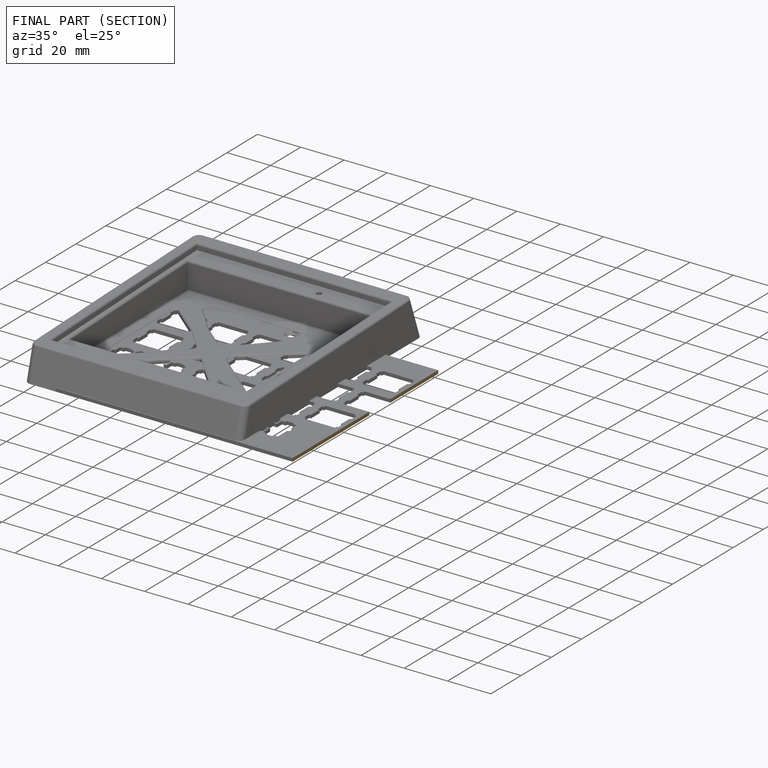
[diagram: finished part — half-section view (interior)]
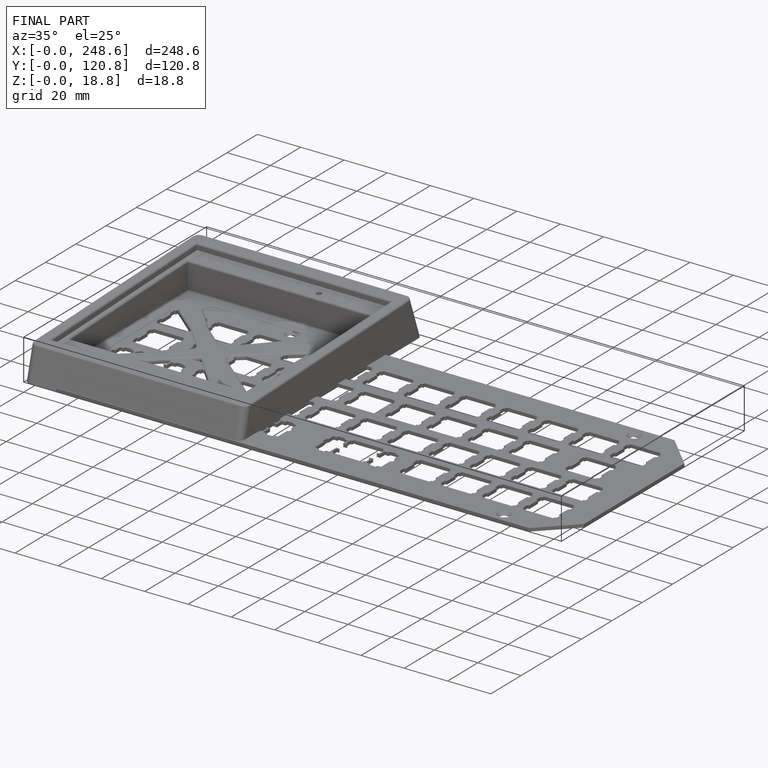
[diagram: finished part — iso view with bounding-box wireframe]
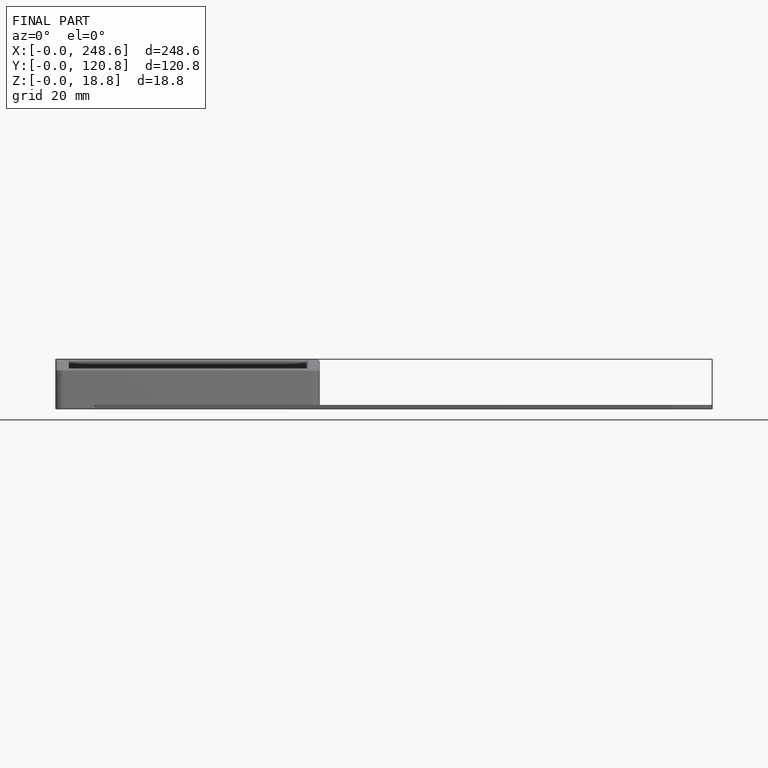
[diagram: finished part — front view with bounding-box wireframe]
